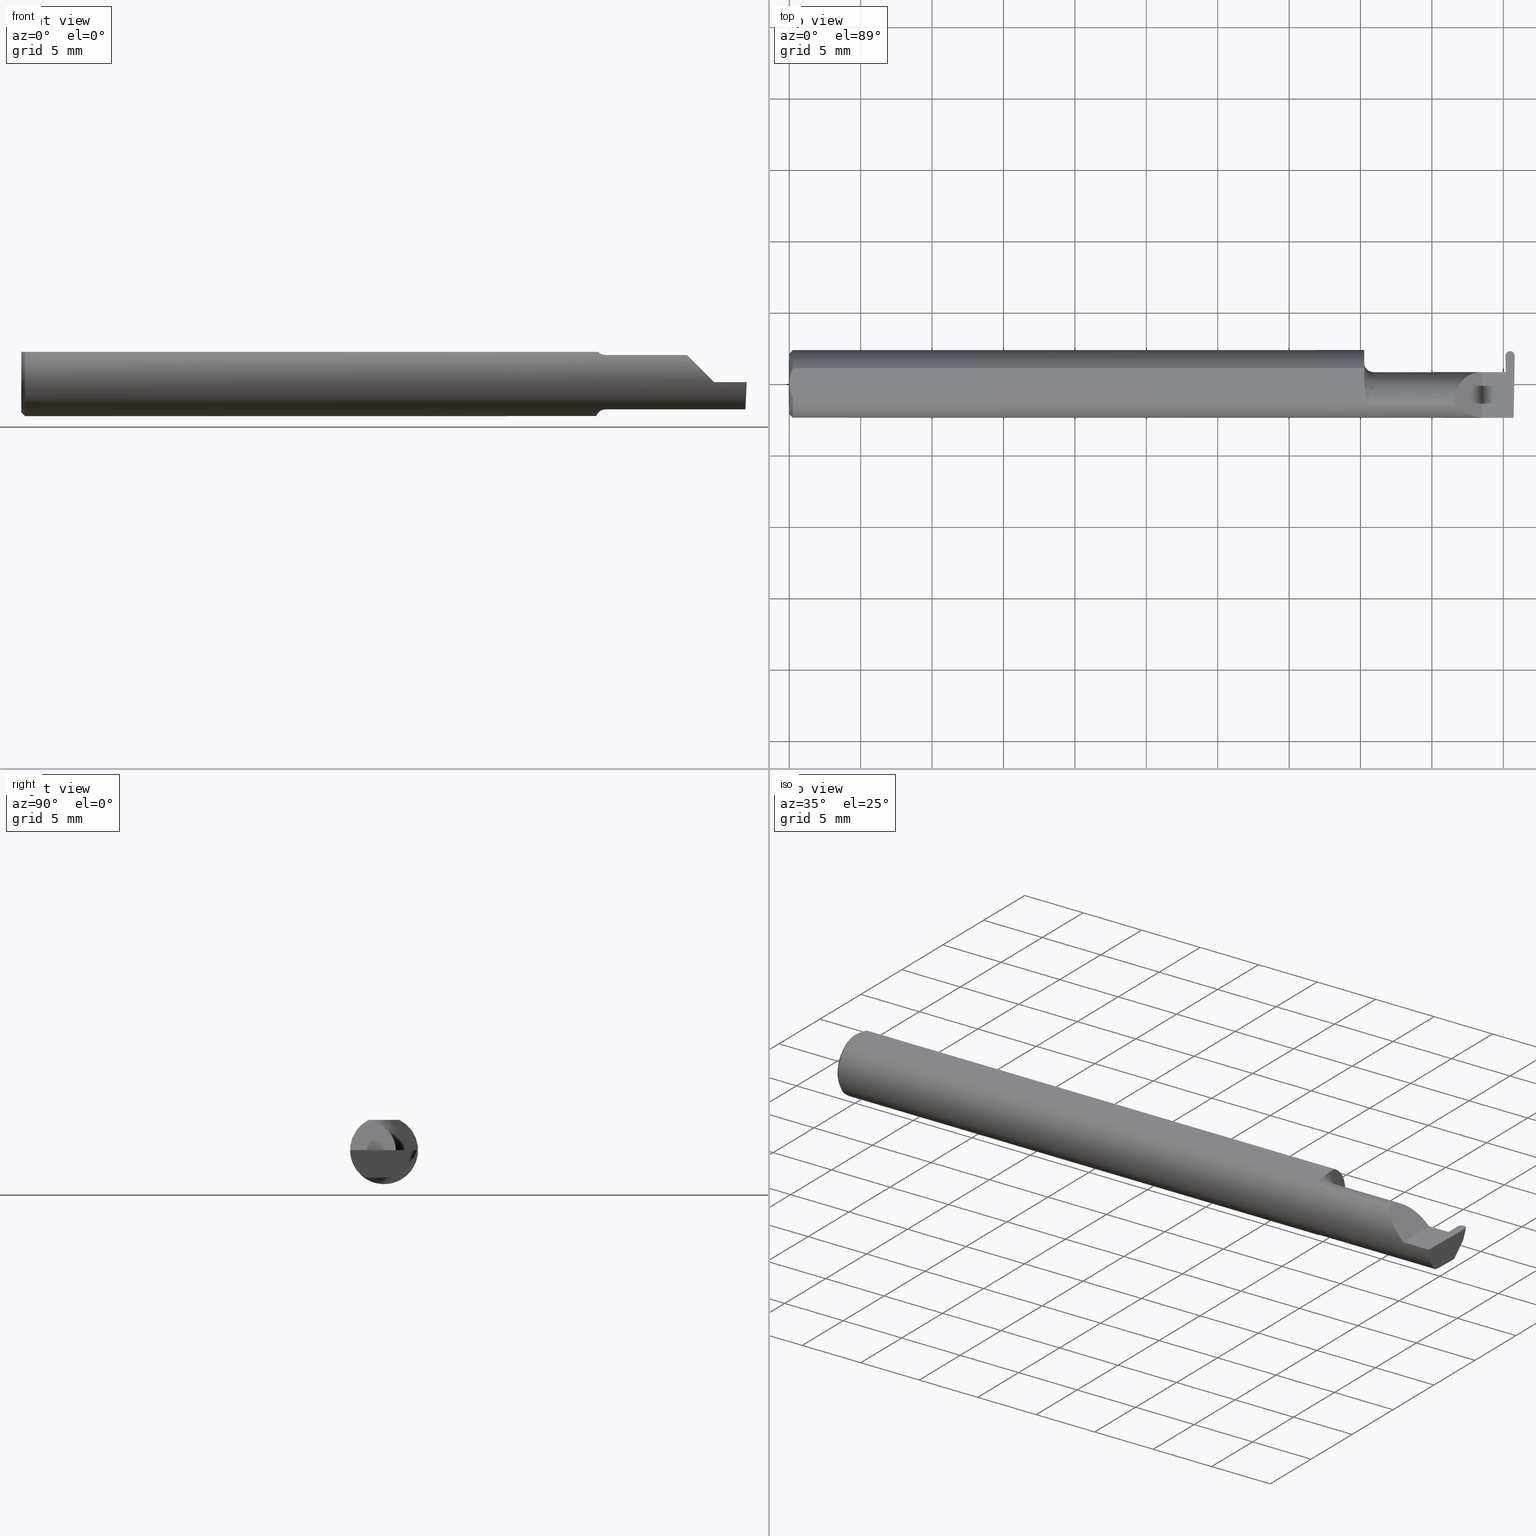
[diagram: canonical four-view strip — front | top / right | iso, engineering-drawing reading convention]
A machine part, canonical four-view strip (front | top / right | iso — engineering-drawing reading convention). The complete STEP part file that produces these views, byte-faithful:
ISO-10303-21;
HEADER;
FILE_DESCRIPTION (( 'STEP AP203' ),
    '1' );
FILE_NAME ('221819-GFR025K-6.STEP',
    '2024-06-17T19:12:09',
    ( '' ),
    ( '' ),
    'SwSTEP 2.0',
    'SolidWorks 2022',
    '' );
FILE_SCHEMA (( 'CONFIG_CONTROL_DESIGN' ));
ENDSEC;

DATA;
#1 = ORIENTED_EDGE ( 'NONE', *, *, #403, .T. ) ;
#2 = CARTESIAN_POINT ( 'NONE',  ( 1.979564206858069220, 0.09040000000000021629, 9.406295376684195230E-19 ) ) ;
#3 = AXIS2_PLACEMENT_3D ( 'NONE', #314, #685, #201 ) ;
#4 = AXIS2_PLACEMENT_3D ( 'NONE', #423, #791, #664 ) ;
#5 = CC_DESIGN_APPROVAL ( #53, ( #10 ) ) ;
#6 = DIRECTION ( 'NONE',  ( -1.000000000000000000, -0.000000000000000000, -0.000000000000000000 ) ) ;
#7 = ADVANCED_FACE ( 'NONE', ( #692 ), #497, .T. ) ;
#8 = DIRECTION ( 'NONE',  ( 0.000000000000000000, -0.3420201433256689350, -0.9396926207859082059 ) ) ;
#9 = FACE_OUTER_BOUND ( 'NONE', #390, .T. ) ;
#10 = PRODUCT_DEFINITION ( 'UNKNOWN', '', #559, #308 ) ;
#11 = DIRECTION ( 'NONE',  ( -1.000000000000000000, -0.000000000000000000, -0.000000000000000000 ) ) ;
#12 = VERTEX_POINT ( 'NONE', #560 ) ;
#13 = CARTESIAN_POINT ( 'NONE',  ( 1.984422275622966358, 0.05209129798028563907, -0.06797378766570144615 ) ) ;
#14 = LINE ( 'NONE', #442, #734 ) ;
#15 = EDGE_CURVE ( 'NONE', #108, #443, #516, .T. ) ;
#16 = TOROIDAL_SURFACE ( 'NONE', #626, 0.09999999999999999167, 0.02499999999999993894 ) ;
#17 = COORDINATED_UNIVERSAL_TIME_OFFSET ( 8, 0, .BEHIND. ) ;
#18 = CYLINDRICAL_SURFACE ( 'NONE', #616, 0.07500000000000003886 ) ;
#19 = ORIENTED_EDGE ( 'NONE', *, *, #743, .F. ) ;
#20 = PLANE ( 'NONE',  #639 ) ;
#21 = MANIFOLD_SOLID_BREP ( 'Radii', #418 ) ;
#22 = EDGE_CURVE ( 'NONE', #443, #633, #177, .T. ) ;
#23 = ORIENTED_EDGE ( 'NONE', *, *, #403, .F. ) ;
#24 = PERSON_AND_ORGANIZATION_ROLE ( 'creator' ) ;
#25 = DIRECTION ( 'NONE',  ( -0.03876062227022269990, -0.3417631236437465025, -0.9389864650134709390 ) ) ;
#26 = ORIENTED_EDGE ( 'NONE', *, *, #790, .T. ) ;
#27 = CARTESIAN_POINT ( 'NONE',  ( 1.591204482410374377, -0.04226411763296350488, 0.08351490979309540708 ) ) ;
#28 = ORIENTED_EDGE ( 'NONE', *, *, #376, .T. ) ;
#29 = PERSON_AND_ORGANIZATION ( #579, #458 ) ;
#30 = DIRECTION ( 'NONE',  ( 0.000000000000000000, 0.000000000000000000, 1.000000000000000000 ) ) ;
#31 = ORIENTED_EDGE ( 'NONE', *, *, #470, .F. ) ;
#32 = CARTESIAN_POINT ( 'NONE',  ( 1.854690286057536941, -0.08092595952420821026, 0.05530971394246249340 ) ) ;
#33 = VECTOR ( 'NONE', #232, 39.37007874015748143 ) ;
#34 = CARTESIAN_POINT ( 'NONE',  ( 1.834999999999999520, -0.04781600192481531841, 0.07500000000000003886 ) ) ;
#35 = EDGE_CURVE ( 'NONE', #245, #362, #374, .T. ) ;
#36 = EDGE_LOOP ( 'NONE', ( #709, #580, #752, #769, #732, #529 ) ) ;
#37 = CARTESIAN_POINT ( 'NONE',  ( 1.974539839182260614, 0.1197494621322279795, 0.01726489658328622667 ) ) ;
#38 = CARTESIAN_POINT ( 'NONE',  ( 1.834999999999999298, 0.001333982822017845335, 0.07500000000000003886 ) ) ;
#39 = EDGE_LOOP ( 'NONE', ( #640, #310, #800 ) ) ;
#40 = LINE ( 'NONE', #145, #351 ) ;
#41 = ORIENTED_EDGE ( 'NONE', *, *, #204, .T. ) ;
#42 = ADVANCED_FACE ( 'NONE', ( #9 ), #551, .F. ) ;
#43 = DIRECTION ( 'NONE',  ( 0.000000000000000000, 0.000000000000000000, 1.000000000000000000 ) ) ;
#44 = APPROVAL_DATE_TIME ( #105, #417 ) ;
#45 = VERTEX_POINT ( 'NONE', #190 ) ;
#46 = CARTESIAN_POINT ( 'NONE',  ( 1.584999999999999964, 0.09359999999999996101, 0.000000000000000000 ) ) ;
#47 = ADVANCED_FACE ( 'NONE', ( #555 ), #437, .F. ) ;
#48 = VECTOR ( 'NONE', #259, 39.37007874015748143 ) ;
#49 = LINE ( 'NONE', #183, #557 ) ;
#50 = VERTEX_POINT ( 'NONE', #623 ) ;
#51 = AXIS2_PLACEMENT_3D ( 'NONE', #427, #236, #677 ) ;
#52 = DIRECTION ( 'NONE',  ( 0.000000000000000000, 0.000000000000000000, -1.000000000000000000 ) ) ;
#53 = APPROVAL ( #98, 'UNSPECIFIED' ) ;
#54 = CARTESIAN_POINT ( 'NONE',  ( 1.975260873654413052, 0.03239999999999999825, 0.000000000000000000 ) ) ;
#55 = ORIENTED_EDGE ( 'NONE', *, *, #567, .F. ) ;
#56 =( BOUNDED_CURVE ( )  B_SPLINE_CURVE ( 3, ( #809, #489, #745, #375 ),
 .UNSPECIFIED., .F., .F. ) 
 B_SPLINE_CURVE_WITH_KNOTS ( ( 4, 4 ),
 ( 1.570796326794919207, 1.618931655734860753 ),
 .UNSPECIFIED. ) 
 CURVE ( )  GEOMETRIC_REPRESENTATION_ITEM ( )  RATIONAL_B_SPLINE_CURVE ( ( 1.000000000000000000, 0.9998069251625132381, 0.9998069251625132381, 1.000000000000000000 ) ) 
 REPRESENTATION_ITEM ( '' )  );
#57 = DIRECTION ( 'NONE',  ( -1.000000000000000000, -0.000000000000000000, -0.000000000000000000 ) ) ;
#58 = CARTESIAN_POINT ( 'NONE',  ( 1.584999999999999964, -0.01308640439514272696, -0.09289765197734378699 ) ) ;
#59 = ORIENTED_EDGE ( 'NONE', *, *, #368, .T. ) ;
#60 = CARTESIAN_POINT ( 'NONE',  ( 1.974486369625657378, 0.07677130609030106967, 0.000000000000000000 ) ) ;
#61 = DIRECTION ( 'NONE',  ( 0.000000000000000000, -0.7071067811865436870, -0.7071067811865513475 ) ) ;
#62 = ORIENTED_EDGE ( 'NONE', *, *, #15, .T. ) ;
#63 = AXIS2_PLACEMENT_3D ( 'NONE', #696, #779, #150 ) ;
#64 = EDGE_CURVE ( 'NONE', #50, #768, #312, .T. ) ;
#65 = AXIS2_PLACEMENT_3D ( 'NONE', #457, #586, #400 ) ;
#66 = LINE ( 'NONE', #372, #771 ) ;
#67 = MECHANICAL_CONTEXT ( 'NONE', #309, 'mechanical' ) ;
#68 = CARTESIAN_POINT ( 'NONE',  ( 1.975260873654413052, 0.03239999999999999825, 0.000000000000000000 ) ) ;
#69 = CARTESIAN_POINT ( 'NONE',  ( 1.910000000000000142, -0.2500000000000000555, 1.102182119232621301E-17 ) ) ;
#70 = CC_DESIGN_DATE_AND_TIME_ASSIGNMENT ( #634, #760, ( #10 ) ) ;
#71 = ORIENTED_EDGE ( 'NONE', *, *, #487, .F. ) ;
#72 = CARTESIAN_POINT ( 'NONE',  ( 1.975446786689251333, 0.03221730376948541558, -0.005231735530809524318 ) ) ;
#73 = EDGE_CURVE ( 'NONE', #788, #50, #798, .T. ) ;
#74 =( LENGTH_UNIT ( ) NAMED_UNIT ( * ) SI_UNIT ( $, .METRE. ) );
#75 = CARTESIAN_POINT ( 'NONE',  ( 1.969065783658063173, 0.03221730376948681029, -0.005231735530809442786 ) ) ;
#76 = CARTESIAN_POINT ( 'NONE',  ( 1.975260873654413052, 0.03239999999999999825, -4.732000043842587031E-21 ) ) ;
#77 = AXIS2_PLACEMENT_3D ( 'NONE', #493, #363, #189 ) ;
#78 = ADVANCED_FACE ( 'NONE', ( #682 ), #83, .F. ) ;
#79 = DIRECTION ( 'NONE',  ( 0.000000000000000000, 0.000000000000000000, 1.000000000000000000 ) ) ;
#80 = CARTESIAN_POINT ( 'NONE',  ( 1.593098441794898346, -0.04641417426599075274, 0.08139430652501543351 ) ) ;
#81 = CARTESIAN_POINT ( 'NONE',  ( 1.609999999999999654, -0.04260000000000003367, 0.000000000000000000 ) ) ;
#82 = B_SPLINE_CURVE_WITH_KNOTS ( 'NONE', 3,
 ( #109, #274, #385, #225, #166, #344 ),
 .UNSPECIFIED., .F., .F.,
 ( 4, 2, 4 ),
 ( 0.001744210492668864416, 0.002295110172257193264, 0.002846009851845522111 ),
 .UNSPECIFIED. ) ;
#83 = PLANE ( 'NONE',  #625 ) ;
#84 = CARTESIAN_POINT ( 'NONE',  ( 0.000000000000000000, 0.000000000000000000, 0.000000000000000000 ) ) ;
#85 = APPROVAL_ROLE ( '' ) ;
#86 = DIRECTION ( 'NONE',  ( -1.000000000000000000, -0.000000000000000000, -0.000000000000000000 ) ) ;
#87 = CARTESIAN_POINT ( 'NONE',  ( 1.996507080450274474, 0.02748456554894273055, -0.07500000000000002498 ) ) ;
#88 = EDGE_CURVE ( 'NONE', #756, #45, #494, .T. ) ;
#89 = AXIS2_PLACEMENT_3D ( 'NONE', #13, #747, #199 ) ;
#90 = ORIENTED_EDGE ( 'NONE', *, *, #701, .F. ) ;
#91 = AXIS2_PLACEMENT_3D ( 'NONE', #697, #323, #147 ) ;
#92 = PERSON_AND_ORGANIZATION ( #579, #458 ) ;
#93 = CARTESIAN_POINT ( 'NONE',  ( 1.586463898467976863, -0.005727447913487319735, 0.08359999999999991049 ) ) ;
#94 = VERTEX_POINT ( 'NONE', #138 ) ;
#95 = CARTESIAN_POINT ( 'NONE',  ( 1.998318014211375448, 0.06205680439066463272, -0.04042776115827773770 ) ) ;
#96 = B_SPLINE_CURVE_WITH_KNOTS ( 'NONE', 3,
 ( #378, #628, #523, #93, #157, #506 ),
 .UNSPECIFIED., .F., .F.,
 ( 4, 2, 4 ),
 ( 0.009672910729349542408, 0.01035804079918431486, 0.01104317086901908732 ),
 .UNSPECIFIED. ) ;
#97 = EDGE_LOOP ( 'NONE', ( #645, #336, #188, #218, #774, #522 ) ) ;
#98 = APPROVAL_STATUS ( 'not_yet_approved' ) ;
#99 = CARTESIAN_POINT ( 'NONE',  ( 1.995069675717878299, -0.05810704225352107677, -0.07337936794867833123 ) ) ;
#100 = VERTEX_POINT ( 'NONE', #252 ) ;
#101 = CARTESIAN_POINT ( 'NONE',  ( 1.609999999999999654, -0.04260000000000003367, 0.000000000000000000 ) ) ;
#102 = ORIENTED_EDGE ( 'NONE', *, *, #243, .T. ) ;
#103 = ADVANCED_FACE ( 'NONE', ( #492 ), #565, .T. ) ;
#104 = CARTESIAN_POINT ( 'NONE',  ( 1.995192704155888785, -0.04781600192481515188, -0.07500000000000003886 ) ) ;
#105 = DATE_AND_TIME ( #700, #708 ) ;
#106 = ORIENTED_EDGE ( 'NONE', *, *, #298, .F. ) ;
#107 = CARTESIAN_POINT ( 'NONE',  ( 1.584999999999999964, -0.04260000000000003367, 0.000000000000000000 ) ) ;
#108 = VERTEX_POINT ( 'NONE', #263 ) ;
#109 = CARTESIAN_POINT ( 'NONE',  ( 0.000000000000000000, 0.000000000000000000, 0.08359999999999991049 ) ) ;
#110 = PERSON_AND_ORGANIZATION ( #579, #458 ) ;
#111 = ORIENTED_EDGE ( 'NONE', *, *, #291, .F. ) ;
#112 = ORIENTED_EDGE ( 'NONE', *, *, #35, .F. ) ;
#113 = EDGE_CURVE ( 'NONE', #399, #756, #452, .T. ) ;
#114 = CARTESIAN_POINT ( 'NONE',  ( 1.910000000000000142, 0.03239999999999999131, 5.082284216461538453E-17 ) ) ;
#115 = CARTESIAN_POINT ( 'NONE',  ( 1.995069675717878299, -0.05810704225352107677, -0.07337936794867833123 ) ) ;
#116 = ORIENTED_EDGE ( 'NONE', *, *, #503, .F. ) ;
#117 = DIRECTION ( 'NONE',  ( 0.000000000000000000, 0.000000000000000000, -1.000000000000000000 ) ) ;
#118 = EDGE_CURVE ( 'NONE', #611, #540, #96, .T. ) ;
#119 = DIRECTION ( 'NONE',  ( 1.000000000000000000, 0.000000000000000000, 0.000000000000000000 ) ) ;
#120 = AXIS2_PLACEMENT_3D ( 'NONE', #46, #663, #52 ) ;
#121 = EDGE_LOOP ( 'NONE', ( #275, #31, #102, #792 ) ) ;
#122 = APPROVAL_PERSON_ORGANIZATION ( #92, #53, #505 ) ;
#123 = PLANE ( 'NONE',  #546 ) ;
#124 = LINE ( 'NONE', #410, #706 ) ;
#125 = ORIENTED_EDGE ( 'NONE', *, *, #782, .F. ) ;
#126 = CARTESIAN_POINT ( 'NONE',  ( 1.999998056073120534, 0.07741385304294044756, 0.000000000000000000 ) ) ;
#127 = EDGE_CURVE ( 'NONE', #756, #94, #306, .T. ) ;
#128 = CARTESIAN_POINT ( 'NONE',  ( 1.585436655799339345, -0.01945041057485642419, -0.09177104786119409663 ) ) ;
#129 = ORIENTED_EDGE ( 'NONE', *, *, #73, .F. ) ;
#130 = DIRECTION ( 'NONE',  ( -1.000000000000000000, -0.000000000000000000, -0.000000000000000000 ) ) ;
#131 = CARTESIAN_POINT ( 'NONE',  ( 1.987408188690569011, 0.09039999999999999425, 0.000000000000000000 ) ) ;
#132 = CARTESIAN_POINT ( 'NONE',  ( 0.01000000000000016674, 0.000000000000000000, 0.000000000000000000 ) ) ;
#133 = VECTOR ( 'NONE', #671, 39.37007874015747433 ) ;
#134 = CARTESIAN_POINT ( 'NONE',  ( 2.115884466375952400, -0.04259999999999980469, -0.07500000000000002498 ) ) ;
#135 = CARTESIAN_POINT ( 'NONE',  ( 0.000000000000000000, 0.000000000000000000, 0.000000000000000000 ) ) ;
#136 = CARTESIAN_POINT ( 'NONE',  ( 0.01000000000000016674, 0.000000000000000000, -0.09360000000000001652 ) ) ;
#137 = EDGE_CURVE ( 'NONE', #346, #670, #389, .T. ) ;
#138 = CARTESIAN_POINT ( 'NONE',  ( 1.609999999999999654, -0.04260000000000003367, 0.07500000000000005274 ) ) ;
#139 = CC_DESIGN_PERSON_AND_ORGANIZATION_ASSIGNMENT ( #765, #704, ( #559 ) ) ;
#140 = CARTESIAN_POINT ( 'NONE',  ( 1.605389214148234434, -0.05750155061631018888, 0.07386444488392715502 ) ) ;
#141 = CARTESIAN_POINT ( 'NONE',  ( 1.609999999999999654, -0.04260000000000003367, 0.000000000000000000 ) ) ;
#142 = DIRECTION ( 'NONE',  ( 1.000000000000000000, 0.000000000000000000, 0.000000000000000000 ) ) ;
#143 = FACE_OUTER_BOUND ( 'NONE', #39, .T. ) ;
#144 = ORIENTED_EDGE ( 'NONE', *, *, #214, .T. ) ;
#145 = CARTESIAN_POINT ( 'NONE',  ( 1.984079623811642268, 0.1167230751830942992, 0.07232205467615791805 ) ) ;
#146 = EDGE_CURVE ( 'NONE', #338, #94, #288, .T. ) ;
#147 = DIRECTION ( 'NONE',  ( 0.000000000000000000, 0.000000000000000000, -1.000000000000000000 ) ) ;
#148 = EDGE_LOOP ( 'NONE', ( #599, #205, #662, #456 ) ) ;
#149 = APPROVAL_STATUS ( 'not_yet_approved' ) ;
#150 = DIRECTION ( 'NONE',  ( 0.000000000000000000, 0.000000000000000000, -1.000000000000000000 ) ) ;
#151 = APPROVAL_ROLE ( '' ) ;
#152 = EDGE_LOOP ( 'NONE', ( #512, #796, #163, #173, #715 ) ) ;
#153 = CARTESIAN_POINT ( 'NONE',  ( 1.591129652885479473, -0.04209513035970116612, 0.08359999999999991049 ) ) ;
#154 = VECTOR ( 'NONE', #332, 39.37007874015748143 ) ;
#155 = CIRCLE ( 'NONE', #4, 0.02499999999999993894 ) ;
#156 = PERSON_AND_ORGANIZATION ( #579, #458 ) ;
#157 = CARTESIAN_POINT ( 'NONE',  ( 1.585000000000000187, 0.003280657920457245337, 0.08359999999999991049 ) ) ;
#158 = EDGE_LOOP ( 'NONE', ( #165, #125, #651 ) ) ;
#159 = CARTESIAN_POINT ( 'NONE',  ( 1.999986840374342822, 0.07677130609030106967, 0.000000000000000000 ) ) ;
#160 = EDGE_CURVE ( 'NONE', #226, #443, #784, .T. ) ;
#161 = ORIENTED_EDGE ( 'NONE', *, *, #470, .T. ) ;
#162 = DIRECTION ( 'NONE',  ( 7.095197676276959543E-16, -0.9993908270190957621, 0.03489949670250104552 ) ) ;
#163 = ORIENTED_EDGE ( 'NONE', *, *, #247, .F. ) ;
#164 = DIRECTION ( 'NONE',  ( -1.000000000000000000, -0.000000000000000000, -0.000000000000000000 ) ) ;
#165 = ORIENTED_EDGE ( 'NONE', *, *, #238, .T. ) ;
#166 = CARTESIAN_POINT ( 'NONE',  ( 0.007036739039485840133, 0.03550621559607060329, 0.08359999999999991049 ) ) ;
#167 = ORIENTED_EDGE ( 'NONE', *, *, #329, .T. ) ;
#168 = CARTESIAN_POINT ( 'NONE',  ( 1.880893035518782730, -0.09359999999999997489, 0.02910696448121682239 ) ) ;
#169 = CARTESIAN_POINT ( 'NONE',  ( 1.995283749808152374, -0.04259999999999980469, -0.07500000000000002498 ) ) ;
#170 = CIRCLE ( 'NONE', #77, 0.08359999999999989662 ) ;
#171 = ORIENTED_EDGE ( 'NONE', *, *, #320, .F. ) ;
#172 = CARTESIAN_POINT ( 'NONE',  ( 1.601446782524424073, -0.05558685324519220539, -0.07531605361338929161 ) ) ;
#173 = ORIENTED_EDGE ( 'NONE', *, *, #426, .T. ) ;
#174 = CARTESIAN_POINT ( 'NONE',  ( 1.969065783658063173, 0.03221730376948681029, -0.005231735530809442786 ) ) ;
#175 = ORIENTED_EDGE ( 'NONE', *, *, #186, .T. ) ;
#176 = CARTESIAN_POINT ( 'NONE',  ( 1.976921122959496957, 0.02931965133412150343, -0.04667009593691547747 ) ) ;
#177 = CIRCLE ( 'NONE', #801, 0.09360000000000001652 ) ;
#178 = CARTESIAN_POINT ( 'NONE',  ( 0.000000000000000000, 0.04209513035969864037, 0.08359999999999988274 ) ) ;
#179 = AXIS2_PLACEMENT_3D ( 'NONE', #227, #511, #654 ) ;
#180 = ORIENTED_EDGE ( 'NONE', *, *, #526, .F. ) ;
#181 = DIRECTION ( 'NONE',  ( 0.000000000000000000, 0.000000000000000000, 1.000000000000000000 ) ) ;
#182 = EDGE_CURVE ( 'NONE', #543, #346, #209, .T. ) ;
#183 = CARTESIAN_POINT ( 'NONE',  ( 2.999519565323742037E-32, -0.09359999999999998876, 2.449293598294716768E-16 ) ) ;
#184 = VERTEX_POINT ( 'NONE', #638 ) ;
#185 = CARTESIAN_POINT ( 'NONE',  ( 1.987065021309431190, 0.09039999999999999425, 0.000000000000000000 ) ) ;
#186 = EDGE_CURVE ( 'NONE', #45, #338, #660, .T. ) ;
#187 = CARTESIAN_POINT ( 'NONE',  ( 1.910000000000000142, 0.03239999999999999131, 5.082284216461538453E-17 ) ) ;
#188 = ORIENTED_EDGE ( 'NONE', *, *, #782, .T. ) ;
#189 = DIRECTION ( 'NONE',  ( 0.000000000000000000, 0.000000000000000000, -1.000000000000000000 ) ) ;
#190 = CARTESIAN_POINT ( 'NONE',  ( 1.836620632051321200, -0.05810704225352102820, 0.07337936794867834511 ) ) ;
#191 = ADVANCED_FACE ( 'NONE', ( #404 ), #577, .F. ) ;
#192 = AXIS2_PLACEMENT_3D ( 'NONE', #762, #644, #455 ) ;
#193 = AXIS2_PLACEMENT_3D ( 'NONE', #799, #239, #740 ) ;
#194 = LINE ( 'NONE', #739, #681 ) ;
#195 = CC_DESIGN_SECURITY_CLASSIFICATION ( #773, ( #559 ) ) ;
#196 = ORIENTED_EDGE ( 'NONE', *, *, #761, .T. ) ;
#197 = CARTESIAN_POINT ( 'NONE',  ( 1.997012998164632958, -0.09360000000000001652, 0.000000000000000000 ) ) ;
#198 = B_SPLINE_CURVE_WITH_KNOTS ( 'NONE', 3,
 ( #476, #673, #610, #128, #58, #234 ),
 .UNSPECIFIED., .F., .F.,
 ( 4, 2, 4 ),
 ( 0.0007041963409106256075, 0.001193146413573847875, 0.001682096486237070251 ),
 .UNSPECIFIED. ) ;
#199 = DIRECTION ( 'NONE',  ( 0.000000000000000000, 0.9396926207859082059, -0.3420201433256692125 ) ) ;
#200 = CARTESIAN_POINT ( 'NONE',  ( 1.995996405735428469, -0.09359999999999997489, -0.02910696448121681199 ) ) ;
#201 = DIRECTION ( 'NONE',  ( 0.03490480639812536257, 0.000000000000000000, 0.9993906415863165194 ) ) ;
#202 = CARTESIAN_POINT ( 'NONE',  ( 1.998950135716953236, 0.07412453217687618723, -0.02836003337206604441 ) ) ;
#203 = TOROIDAL_SURFACE ( 'NONE', #723, 0.09999999999999999167, 0.02499999999999993894 ) ;
#204 = EDGE_CURVE ( 'NONE', #763, #468, #584, .T. ) ;
#205 = ORIENTED_EDGE ( 'NONE', *, *, #272, .T. ) ;
#206 = CARTESIAN_POINT ( 'NONE',  ( 1.609999999999999654, -0.05810704225352104207, 0.07337936794867834511 ) ) ;
#207 = DIRECTION ( 'NONE',  ( 1.000000000000000000, -0.000000000000000000, -0.000000000000000000 ) ) ;
#208 = CC_DESIGN_PERSON_AND_ORGANIZATION_ASSIGNMENT ( #156, #278, ( #273 ) ) ;
#209 = LINE ( 'NONE', #588, #733 ) ;
#210 = VERTEX_POINT ( 'NONE', #766 ) ;
#211 = CARTESIAN_POINT ( 'NONE',  ( 1.987236605000000100, 0.08345985621932504317, -0.01902470932961709826 ) ) ;
#212 = PERSON_AND_ORGANIZATION ( #579, #458 ) ;
#213 = CARTESIAN_POINT ( 'NONE',  ( 1.584999999999999964, -0.04260000000000003367, 0.000000000000000000 ) ) ;
#214 = EDGE_CURVE ( 'NONE', #670, #12, #707, .T. ) ;
#215 = ORIENTED_EDGE ( 'NONE', *, *, #544, .F. ) ;
#216 = DIRECTION ( 'NONE',  ( 0.000000000000000000, 0.000000000000000000, 1.000000000000000000 ) ) ;
#217 = AXIS2_PLACEMENT_3D ( 'NONE', #530, #229, #117 ) ;
#218 = ORIENTED_EDGE ( 'NONE', *, *, #807, .T. ) ;
#219 = APPROVAL_PERSON_ORGANIZATION ( #324, #754, #85 ) ;
#220 = CARTESIAN_POINT ( 'NONE',  ( 1.834999999999999520, -0.04260000000000003367, 0.07500000000000003886 ) ) ;
#221 = COORDINATED_UNIVERSAL_TIME_OFFSET ( 8, 0, .BEHIND. ) ;
#222 = ORIENTED_EDGE ( 'NONE', *, *, #487, .T. ) ;
#223 = CARTESIAN_POINT ( 'NONE',  ( 1.996701111497402481, 0.03118878038446752654, -0.07129578516447518388 ) ) ;
#224 = ORIENTED_EDGE ( 'NONE', *, *, #329, .F. ) ;
#225 = CARTESIAN_POINT ( 'NONE',  ( 0.004492168231814808177, 0.02859366993844194779, 0.08359999999999991049 ) ) ;
#226 = VERTEX_POINT ( 'NONE', #699 ) ;
#227 = CARTESIAN_POINT ( 'NONE',  ( 1.584999999999999964, -0.04260000000000003367, 0.000000000000000000 ) ) ;
#228 = ORIENTED_EDGE ( 'NONE', *, *, #451, .T. ) ;
#229 = DIRECTION ( 'NONE',  ( 1.000000000000000000, 0.000000000000000000, 0.000000000000000000 ) ) ;
#230 = ADVANCED_FACE ( 'NONE', ( #714 ), #325, .F. ) ;
#231 = CONICAL_SURFACE ( 'NONE', #265, 0.08359999999999989662, 0.7853981633974458365 ) ;
#232 = DIRECTION ( 'NONE',  ( 0.000000000000000000, 1.000000000000000000, 0.000000000000000000 ) ) ;
#233 = EDGE_LOOP ( 'NONE', ( #161, #167 ) ) ;
#234 = CARTESIAN_POINT ( 'NONE',  ( 1.584999999999999964, -0.006757276995305234492, -0.09335576686851605743 ) ) ;
#235 = EDGE_LOOP ( 'NONE', ( #666, #614, #116, #597, #481 ) ) ;
#236 = DIRECTION ( 'NONE',  ( -1.000000000000000000, -0.000000000000000000, -0.000000000000000000 ) ) ;
#237 = EDGE_LOOP ( 'NONE', ( #55, #548, #510, #384, #215, #71, #591, #424, #1 ) ) ;
#238 = EDGE_CURVE ( 'NONE', #184, #293, #755, .T. ) ;
#239 = DIRECTION ( 'NONE',  ( 0.9993699743034455407, 0.001238639365660606107, 0.03546999060124694098 ) ) ;
#240 = AXIS2_PLACEMENT_3D ( 'NONE', #627, #79, #373 ) ;
#241 = EDGE_LOOP ( 'NONE', ( #532, #356, #405, #777, #780, #564, #297, #19, #62, #350, #326, #300, #262, #467 ) ) ;
#242 = DIRECTION ( 'NONE',  ( 0.000000000000000000, 0.000000000000000000, 1.000000000000000000 ) ) ;
#243 = EDGE_CURVE ( 'NONE', #280, #633, #82, .T. ) ;
#244 = FACE_OUTER_BOUND ( 'NONE', #333, .T. ) ;
#245 = VERTEX_POINT ( 'NONE', #269 ) ;
#246 = CARTESIAN_POINT ( 'NONE',  ( 1.978015756548945348, -0.04260000000000003367, -0.07500000000000002498 ) ) ;
#247 = EDGE_CURVE ( 'NONE', #805, #346, #552, .T. ) ;
#248 = DIRECTION ( 'NONE',  ( 0.000000000000000000, 0.000000000000000000, -1.000000000000000000 ) ) ;
#249 = CARTESIAN_POINT ( 'NONE',  ( 1.987065021309431190, 0.09039999999999999425, 0.000000000000000000 ) ) ;
#250 = CC_DESIGN_PERSON_AND_ORGANIZATION_ASSIGNMENT ( #29, #24, ( #559 ) ) ;
#251 = AXIS2_PLACEMENT_3D ( 'NONE', #284, #162, #398 ) ;
#252 = CARTESIAN_POINT ( 'NONE',  ( 1.591356684838558744, -0.04260000000000006143, -0.08334386600104411180 ) ) ;
#253 = AXIS2_PLACEMENT_3D ( 'NONE', #414, #606, #61 ) ;
#254 = APPROVAL_PERSON_ORGANIZATION ( #110, #417, #151 ) ;
#255 = CARTESIAN_POINT ( 'NONE',  ( 1.609999999999999654, -0.05810704225352104207, -0.07337936794867834511 ) ) ;
#256 = DIRECTION ( 'NONE',  ( -0.7071067811865442421, 0.000000000000000000, -0.7071067811865509034 ) ) ;
#257 = FACE_OUTER_BOUND ( 'NONE', #448, .T. ) ;
#258 = B_SPLINE_CURVE_WITH_KNOTS ( 'NONE', 3,
 ( #153, #27, #686, #758 ),
 .UNSPECIFIED., .F., .F.,
 ( 4, 4 ),
 ( 4.741820243497489152E-07, 1.584523690453282392E-05 ),
 .UNSPECIFIED. ) ;
#259 = DIRECTION ( 'NONE',  ( 1.000000000000000000, 7.099522513569547654E-16, -0.000000000000000000 ) ) ;
#260 = CARTESIAN_POINT ( 'NONE',  ( -3.937007874019685528E-05, 0.09039999999999999425, 0.000000000000000000 ) ) ;
#261 = EDGE_CURVE ( 'NONE', #468, #411, #40, .T. ) ;
#262 = ORIENTED_EDGE ( 'NONE', *, *, #761, .F. ) ;
#263 = CARTESIAN_POINT ( 'NONE',  ( 0.01000000000000016674, -0.04209513035969864037, 0.08359999999999988274 ) ) ;
#264 = DIRECTION ( 'NONE',  ( -1.000000000000000000, -0.000000000000000000, -0.000000000000000000 ) ) ;
#265 = AXIS2_PLACEMENT_3D ( 'NONE', #84, #327, #566 ) ;
#266 = ADVANCED_FACE ( 'NONE', ( #572 ), #18, .T. ) ;
#267 = EDGE_LOOP ( 'NONE', ( #475, #111, #222, #277 ) ) ;
#268 = CALENDAR_DATE ( 2024, 17, 6 ) ;
#269 = CARTESIAN_POINT ( 'NONE',  ( 1.977841490183931406, 0.02986403519928995318, -0.07262053034965132436 ) ) ;
#270 = VERTEX_POINT ( 'NONE', #159 ) ;
#271 = DATE_AND_TIME ( #770, #353 ) ;
#272 = EDGE_CURVE ( 'NONE', #362, #788, #775, .T. ) ;
#273 = PRODUCT ( '221819-GFR025K-6', '221819-GFR025K-6', '', ( #67 ) ) ;
#274 = CARTESIAN_POINT ( 'NONE',  ( 2.476070721796526867E-17, 0.007317304829308955878, 0.08359999999999991049 ) ) ;
#275 = ORIENTED_EDGE ( 'NONE', *, *, #160, .F. ) ;
#276 = CARTESIAN_POINT ( 'NONE',  ( 1.975523074283046965, 0.07412453217687620111, -0.02836003337206605482 ) ) ;
#277 = ORIENTED_EDGE ( 'NONE', *, *, #368, .F. ) ;
#278 = PERSON_AND_ORGANIZATION_ROLE ( 'design_owner' ) ;
#279 = DIRECTION ( 'NONE',  ( -1.000000000000000000, -0.000000000000000000, -0.000000000000000000 ) ) ;
#280 = VERTEX_POINT ( 'NONE', #286 ) ;
#281 = CARTESIAN_POINT ( 'NONE',  ( 1.910000000000000142, -0.09360000000000005815, 1.102182119232621301E-17 ) ) ;
#282 = VECTOR ( 'NONE', #621, 39.37007874015748143 ) ;
#283 = CIRCLE ( 'NONE', #469, 0.09999999999999999167 ) ;
#284 = CARTESIAN_POINT ( 'NONE',  ( 1.975260873654413052, 0.03239999999999999825, 0.000000000000000000 ) ) ;
#285 = ORIENTED_EDGE ( 'NONE', *, *, #620, .T. ) ;
#286 = CARTESIAN_POINT ( 'NONE',  ( 0.000000000000000000, 0.000000000000000000, 0.08359999999999991049 ) ) ;
#287 = ORIENTED_EDGE ( 'NONE', *, *, #554, .T. ) ;
#288 = LINE ( 'NONE', #772, #154 ) ;
#289 = ORIENTED_EDGE ( 'NONE', *, *, #204, .F. ) ;
#290 = FACE_OUTER_BOUND ( 'NONE', #422, .T. ) ;
#291 = EDGE_CURVE ( 'NONE', #569, #45, #334, .T. ) ;
#292 = CARTESIAN_POINT ( 'NONE',  ( 0.000000000000000000, -0.04209513035969864037, 0.08359999999999988274 ) ) ;
#293 = VERTEX_POINT ( 'NONE', #406 ) ;
#294 = FACE_OUTER_BOUND ( 'NONE', #158, .T. ) ;
#295 = VECTOR ( 'NONE', #781, 39.37007874015748143 ) ;
#296 = CARTESIAN_POINT ( 'NONE',  ( 1.609999999999999654, -0.05810704225352104207, -0.07337936794867834511 ) ) ;
#297 = ORIENTED_EDGE ( 'NONE', *, *, #631, .F. ) ;
#298 = EDGE_CURVE ( 'NONE', #12, #245, #592, .T. ) ;
#299 = CARTESIAN_POINT ( 'NONE',  ( 1.595264545693808822, -0.04993027844100252771, -0.07924826417278524326 ) ) ;
#300 = ORIENTED_EDGE ( 'NONE', *, *, #238, .F. ) ;
#301 = LINE ( 'NONE', #432, #419 ) ;
#302 =( BOUNDED_CURVE ( )  B_SPLINE_CURVE ( 3, ( #753, #750, #200, #197 ),
 .UNSPECIFIED., .F., .F. ) 
 B_SPLINE_CURVE_WITH_KNOTS ( ( 4, 4 ),
 ( 0.2063001339125776490, 1.107331509589607910 ),
 .UNSPECIFIED. ) 
 CURVE ( )  GEOMETRIC_REPRESENTATION_ITEM ( )  RATIONAL_B_SPLINE_CURVE ( ( 1.000000000000000000, 0.9334817841311873199, 0.9334817841311873199, 1.000000000000000000 ) ) 
 REPRESENTATION_ITEM ( '' )  );
#303 = DIRECTION ( 'NONE',  ( -0.03876062227022298440, 0.3417631236437465025, 0.9389864650134710500 ) ) ;
#304 = ORIENTED_EDGE ( 'NONE', *, *, #495, .F. ) ;
#305 = LINE ( 'NONE', #126, #133 ) ;
#306 = CIRCLE ( 'NONE', #705, 0.07500000000000005274 ) ;
#307 = CARTESIAN_POINT ( 'NONE',  ( 1.591356684838558744, -0.04260000000000006143, -0.08334386600104411180 ) ) ;
#308 = DESIGN_CONTEXT ( 'detailed design', #598, 'design' ) ;
#309 = APPLICATION_CONTEXT ( 'configuration controlled 3d designs of mechanical parts and assemblies' ) ;
#310 = ORIENTED_EDGE ( 'NONE', *, *, #113, .T. ) ;
#311 = FACE_OUTER_BOUND ( 'NONE', #395, .T. ) ;
#312 = LINE ( 'NONE', #68, #48 ) ;
#313 = ADVANCED_FACE ( 'NONE', ( #525 ), #710, .T. ) ;
#314 = CARTESIAN_POINT ( 'NONE',  ( 1.999998056073120534, 0.07741385304294044756, 0.000000000000000000 ) ) ;
#315 = PLANE ( 'NONE',  #520 ) ;
#316 = CARTESIAN_POINT ( 'NONE',  ( 1.969248479888576320, 0.03239999999999999825, 0.000000000000000000 ) ) ;
#317 = CC_DESIGN_APPROVAL ( #754, ( #559 ) ) ;
#318 = CARTESIAN_POINT ( 'NONE',  ( 1.910000000000000142, -0.09360000000000005815, 1.102182119232621301E-17 ) ) ;
#319 = CARTESIAN_POINT ( 'NONE',  ( 1.591356684838558744, -0.04260000000000006143, 0.08334386600104411180 ) ) ;
#320 = EDGE_CURVE ( 'NONE', #210, #543, #716, .T. ) ;
#321 = DIRECTION ( 'NONE',  ( -0.7071067811865507924, 0.000000000000000000, 0.7071067811865441310 ) ) ;
#322 = EDGE_CURVE ( 'NONE', #402, #453, #407, .T. ) ;
#323 = DIRECTION ( 'NONE',  ( 1.000000000000000000, 0.000000000000000000, 0.000000000000000000 ) ) ;
#324 = PERSON_AND_ORGANIZATION ( #579, #458 ) ;
#325 = PLANE ( 'NONE',  #251 ) ;
#326 = ORIENTED_EDGE ( 'NONE', *, *, #807, .F. ) ;
#327 = DIRECTION ( 'NONE',  ( 1.000000000000000000, 0.000000000000000000, 0.000000000000000000 ) ) ;
#328 = VECTOR ( 'NONE', #207, 39.37007874015748143 ) ;
#329 = EDGE_CURVE ( 'NONE', #226, #280, #441, .T. ) ;
#330 = ORIENTED_EDGE ( 'NONE', *, *, #495, .T. ) ;
#331 = PERSON_AND_ORGANIZATION_ROLE ( 'creator' ) ;
#332 = DIRECTION ( 'NONE',  ( -1.000000000000000000, -0.000000000000000000, -0.000000000000000000 ) ) ;
#333 = EDGE_LOOP ( 'NONE', ( #228, #112, #106, #340 ) ) ;
#334 =( BOUNDED_CURVE ( )  B_SPLINE_CURVE ( 3, ( #281, #168, #32, #396 ),
 .UNSPECIFIED., .F., .F. ) 
 B_SPLINE_CURVE_WITH_KNOTS ( ( 4, 4 ),
 ( 4.712388980384689674, 5.613420356061720184 ),
 .UNSPECIFIED. ) 
 CURVE ( )  GEOMETRIC_REPRESENTATION_ITEM ( )  RATIONAL_B_SPLINE_CURVE ( ( 1.000000000000000000, 0.9334817841311873199, 0.9334817841311873199, 1.000000000000000000 ) ) 
 REPRESENTATION_ITEM ( '' )  );
#335 = FACE_OUTER_BOUND ( 'NONE', #233, .T. ) ;
#336 = ORIENTED_EDGE ( 'NONE', *, *, #118, .T. ) ;
#337 = DIRECTION ( 'NONE',  ( 0.000000000000000000, 0.000000000000000000, 1.000000000000000000 ) ) ;
#338 = VERTEX_POINT ( 'NONE', #519 ) ;
#339 = CARTESIAN_POINT ( 'NONE',  ( 0.000000000000000000, 0.000000000000000000, -0.08359999999999989662 ) ) ;
#340 = ORIENTED_EDGE ( 'NONE', *, *, #214, .F. ) ;
#341 = DIRECTION ( 'NONE',  ( -1.000000000000000000, -0.000000000000000000, -0.000000000000000000 ) ) ;
#342 = VECTOR ( 'NONE', #793, 39.37007874015748143 ) ;
#343 = ORIENTED_EDGE ( 'NONE', *, *, #272, .F. ) ;
#344 = CARTESIAN_POINT ( 'NONE',  ( 0.01000000000000016674, 0.04209513035969864037, 0.08359999999999988274 ) ) ;
#345 = EDGE_CURVE ( 'NONE', #540, #184, #283, .T. ) ;
#346 = VERTEX_POINT ( 'NONE', #169 ) ;
#347 = ORIENTED_EDGE ( 'NONE', *, *, #631, .T. ) ;
#348 = CARTESIAN_POINT ( 'NONE',  ( 1.609999999999999654, -0.04260000000000002673, -0.09999999999999999167 ) ) ;
#349 = LINE ( 'NONE', #178, #593 ) ;
#350 = ORIENTED_EDGE ( 'NONE', *, *, #22, .T. ) ;
#351 = VECTOR ( 'NONE', #635, 39.37007874015748854 ) ;
#352 = ADVANCED_FACE ( 'NONE', ( #290 ), #746, .T. ) ;
#353 = LOCAL_TIME ( 12, 12, 9.000000000000000000, #576 ) ;
#354 = B_SPLINE_CURVE_WITH_KNOTS ( 'NONE', 3,
 ( #486, #416, #797, #735 ),
 .UNSPECIFIED., .F., .F.,
 ( 4, 4 ),
 ( 0.0006429768761302093617, 0.001744210492668864416 ),
 .UNSPECIFIED. ) ;
#355 = DIRECTION ( 'NONE',  ( -1.000000000000000000, -0.000000000000000000, -0.000000000000000000 ) ) ;
#356 = ORIENTED_EDGE ( 'NONE', *, *, #600, .T. ) ;
#357 = DIRECTION ( 'NONE',  ( 1.000000000000000000, 0.000000000000000000, -0.000000000000000000 ) ) ;
#358 = CARTESIAN_POINT ( 'NONE',  ( 1.987236605000000100, 0.08345985621932504317, -0.01902470932961709826 ) ) ;
#359 = EDGE_LOOP ( 'NONE', ( #674, #462, #658, #465, #59, #713, #129, #343 ) ) ;
#360 = FACE_OUTER_BOUND ( 'NONE', #359, .T. ) ;
#361 = CARTESIAN_POINT ( 'NONE',  ( 1.593086474849918499, -0.04638796853538170589, -0.08140770120152261702 ) ) ;
#362 = VERTEX_POINT ( 'NONE', #401 ) ;
#363 = DIRECTION ( 'NONE',  ( -1.000000000000000000, -0.000000000000000000, -0.000000000000000000 ) ) ;
#364 = AXIS2_PLACEMENT_3D ( 'NONE', #744, #749, #367 ) ;
#365 = DIRECTION ( 'NONE',  ( 0.000000000000000000, -0.9396926207859084279, 0.3420201433256686019 ) ) ;
#366 = VECTOR ( 'NONE', #646, 39.37007874015748143 ) ;
#367 = DIRECTION ( 'NONE',  ( -1.000000000000000000, 0.000000000000000000, 1.224646799147358877E-16 ) ) ;
#368 = EDGE_CURVE ( 'NONE', #338, #726, #636, .T. ) ;
#369 = CARTESIAN_POINT ( 'NONE',  ( 1.999986840374342822, 0.07677130609030106967, 0.000000000000000000 ) ) ;
#370 =( NAMED_UNIT ( * ) SI_UNIT ( $, .STERADIAN. ) SOLID_ANGLE_UNIT ( ) );
#371 = CARTESIAN_POINT ( 'NONE',  ( 1.792236604999999816, -0.05810704225352107677, 0.07337936794867833123 ) ) ;
#372 = CARTESIAN_POINT ( 'NONE',  ( 1.792236604999999816, -0.05810704225352107677, -0.07337936794867833123 ) ) ;
#373 = DIRECTION ( 'NONE',  ( 1.000000000000000000, 0.000000000000000000, 0.000000000000000000 ) ) ;
#374 = LINE ( 'NONE', #808, #439 ) ;
#375 = CARTESIAN_POINT ( 'NONE',  ( 1.987236605000000100, 0.08345985621932504317, -0.01902470932961709826 ) ) ;
#376 = EDGE_CURVE ( 'NONE', #100, #402, #430, .T. ) ;
#377 = VECTOR ( 'NONE', #466, 39.37007874015748854 ) ;
#378 = CARTESIAN_POINT ( 'NONE',  ( 1.591129652885479473, -0.04209513035970116612, 0.08359999999999991049 ) ) ;
#379 = VECTOR ( 'NONE', #617, 39.37007874015748143 ) ;
#380 = DIRECTION ( 'NONE',  ( 0.000000000000000000, 0.000000000000000000, 1.000000000000000000 ) ) ;
#381 = ADVANCED_FACE ( 'NONE', ( #294 ), #521, .T. ) ;
#382 = DIRECTION ( 'NONE',  ( 0.000000000000000000, 0.000000000000000000, -1.000000000000000000 ) ) ;
#383 = DIRECTION ( 'NONE',  ( 1.000000000000000000, 0.000000000000000000, 0.000000000000000000 ) ) ;
#384 = ORIENTED_EDGE ( 'NONE', *, *, #64, .F. ) ;
#385 = CARTESIAN_POINT ( 'NONE',  ( 0.0009807498324118613890, 0.01453516766257752398, 0.08359999999999992437 ) ) ;
#386 = EDGE_CURVE ( 'NONE', #670, #402, #538, .T. ) ;
#387 = CARTESIAN_POINT ( 'NONE',  ( 1.976155195788624752, 0.06205680439066463966, -0.04042776115827773076 ) ) ;
#388 = APPROVAL_DATE_TIME ( #449, #754 ) ;
#389 = LINE ( 'NONE', #718, #490 ) ;
#390 = EDGE_LOOP ( 'NONE', ( #171, #330, #694, #477, #397, #524 ) ) ;
#391 = CARTESIAN_POINT ( 'NONE',  ( 1.987236605000000100, 0.08345985621932504317, -0.01902470932961709826 ) ) ;
#392 = ORIENTED_EDGE ( 'NONE', *, *, #137, .T. ) ;
#393 = PERSON_AND_ORGANIZATION ( #579, #458 ) ;
#394 = CARTESIAN_POINT ( 'NONE',  ( 1.835542168554753717, -0.05300374992736060081, 0.07445783144524575903 ) ) ;
#395 = EDGE_LOOP ( 'NONE', ( #392, #144, #717, #649 ) ) ;
#396 = CARTESIAN_POINT ( 'NONE',  ( 1.836620632051321200, -0.05810704225352102820, 0.07337936794867834511 ) ) ;
#397 = ORIENTED_EDGE ( 'NONE', *, *, #247, .T. ) ;
#398 = DIRECTION ( 'NONE',  ( 0.000000000000000000, -0.03489949670250104552, -0.9993908270190957621 ) ) ;
#399 = VERTEX_POINT ( 'NONE', #776 ) ;
#400 = DIRECTION ( 'NONE',  ( 0.000000000000000000, 0.000000000000000000, -1.000000000000000000 ) ) ;
#401 = CARTESIAN_POINT ( 'NONE',  ( 1.975446786689251333, 0.03221730376948541558, -0.005231735530809524318 ) ) ;
#402 = VERTEX_POINT ( 'NONE', #675 ) ;
#403 = EDGE_CURVE ( 'NONE', #270, #763, #725, .T. ) ;
#404 = FACE_OUTER_BOUND ( 'NONE', #460, .T. ) ;
#405 = ORIENTED_EDGE ( 'NONE', *, *, #689, .T. ) ;
#406 = CARTESIAN_POINT ( 'NONE',  ( 1.584999999999999964, 0.04209513035969864037, 0.08359999999999988274 ) ) ;
#407 = CIRCLE ( 'NONE', #802, 0.07500000000000005274 ) ;
#408 = VERTEX_POINT ( 'NONE', #60 ) ;
#409 = CARTESIAN_POINT ( 'NONE',  ( 1.834999999999999520, -0.04260000000000003367, 0.07500000000000003886 ) ) ;
#410 = CARTESIAN_POINT ( 'NONE',  ( -3.937007874019685528E-05, 0.02748456554894273055, -0.07500000000000002498 ) ) ;
#411 = VERTEX_POINT ( 'NONE', #249 ) ;
#412 = ADVANCED_FACE ( 'NONE', ( #360 ), #478, .T. ) ;
#413 =( BOUNDED_CURVE ( )  B_SPLINE_CURVE ( 3, ( #185, #2, #429, #680 ),
 .UNSPECIFIED., .F., .F. ) 
 B_SPLINE_CURVE_WITH_KNOTS ( ( 4, 4 ),
 ( 6.177091236413978947, 7.752341154236730425 ),
 .UNSPECIFIED. ) 
 CURVE ( )  GEOMETRIC_REPRESENTATION_ITEM ( )  RATIONAL_B_SPLINE_CURVE ( ( 1.000000000000000000, 0.8036869647627007396, 0.8036869647627007396, 1.000000000000000000 ) ) 
 REPRESENTATION_ITEM ( '' )  );
#414 = CARTESIAN_POINT ( 'NONE',  ( -3.937007874019685528E-05, 0.08348456554894213844, -0.01899999999999999953 ) ) ;
#415 = EDGE_LOOP ( 'NONE', ( #759, #28, #653 ) ) ;
#416 = CARTESIAN_POINT ( 'NONE',  ( 0.004072204388638868758, -0.02891446873729324601, 0.08359999999999991049 ) ) ;
#417 = APPROVAL ( #656, 'UNSPECIFIED' ) ;
#418 = CLOSED_SHELL ( 'NONE', ( #730, #535, #412, #313, #352, #230, #7, #78, #47, #483, #589, #583, #266, #609, #381, #517, #558, #679, #191, #42, #721, #103, #669 ) ) ;
#419 = VECTOR ( 'NONE', #684, 39.37007874015748854 ) ;
#420 = LOCAL_TIME ( 12, 12, 9.000000000000000000, #515 ) ;
#421 = LINE ( 'NONE', #292, #605 ) ;
#422 = EDGE_LOOP ( 'NONE', ( #224, #722, #485, #783 ) ) ;
#423 = CARTESIAN_POINT ( 'NONE',  ( 1.609999999999999654, -0.04260000000000003367, 0.09999999999999999167 ) ) ;
#424 = ORIENTED_EDGE ( 'NONE', *, *, #474, .F. ) ;
#425 = CARTESIAN_POINT ( 'NONE',  ( 2.000126064110226753, 0.08474742857719365363, -1.579535239246384574E-18 ) ) ;
#426 = EDGE_CURVE ( 'NONE', #805, #453, #66, .T. ) ;
#427 = CARTESIAN_POINT ( 'NONE',  ( 1.609999999999999654, -0.04260000000000003367, 0.000000000000000000 ) ) ;
#428 = ORIENTED_EDGE ( 'NONE', *, *, #146, .T. ) ;
#429 = CARTESIAN_POINT ( 'NONE',  ( 1.974347145889773225, 0.08474742857719380629, 1.579535239246386693E-18 ) ) ;
#430 = CIRCLE ( 'NONE', #479, 0.02499999999999993894 ) ;
#431 = CARTESIAN_POINT ( 'NONE',  ( 1.969187581145071864, 0.03233910125649559764, -0.001743911843603144704 ) ) ;
#432 = CARTESIAN_POINT ( 'NONE',  ( 1.974477840987134192, 0.07684650545427940127, 0.0002066085544878476163 ) ) ;
#433 = LENGTH_MEASURE_WITH_UNIT ( LENGTH_MEASURE( 0.02539999999999999897 ), #74 );
#434 = CARTESIAN_POINT ( 'NONE',  ( 1.599746577633803346, -0.05429945193459796010, 0.07626038032150810053 ) ) ;
#435 = DIRECTION ( 'NONE',  ( 0.000000000000000000, 0.000000000000000000, 1.000000000000000000 ) ) ;
#436 = EDGE_CURVE ( 'NONE', #408, #527, #301, .T. ) ;
#437 = PLANE ( 'NONE',  #364 ) ;
#438 = DIRECTION ( 'NONE',  ( -1.000000000000000000, -0.000000000000000000, -0.000000000000000000 ) ) ;
#439 = VECTOR ( 'NONE', #630, 39.37007874015748143 ) ;
#440 = CARTESIAN_POINT ( 'NONE',  ( 1.969126682401567408, 0.03227820251299121090, -0.003487823687206289408 ) ) ;
#441 = CIRCLE ( 'NONE', #65, 0.08359999999999989662 ) ;
#442 = CARTESIAN_POINT ( 'NONE',  ( 1.584999999999999964, 0.03239999999999999131, 5.082284216461538453E-17 ) ) ;
#443 = VERTEX_POINT ( 'NONE', #136 ) ;
#444 = APPLICATION_PROTOCOL_DEFINITION ( 'international standard', 'config_control_design', 1994, #309 ) ;
#445 = CARTESIAN_POINT ( 'NONE',  ( 1.836620632051321200, -0.05810704225352102820, 0.07337936794867834511 ) ) ;
#446 = CARTESIAN_POINT ( 'NONE',  ( 0.01000000000000016674, 0.04209513035969864037, 0.08359999999999988274 ) ) ;
#447 = PRODUCT_DEFINITION_SHAPE ( 'NONE', 'NONE',  #10 ) ;
#448 = EDGE_LOOP ( 'NONE', ( #574, #196, #507, #785, #347, #607, #285 ) ) ;
#449 = DATE_AND_TIME ( #268, #668 ) ;
#450 = CARTESIAN_POINT ( 'NONE',  ( 1.984422275622966580, 0.06407237889530596753, -0.07233454449310373902 ) ) ;
#451 = EDGE_CURVE ( 'NONE', #670, #362, #778, .T. ) ;
#452 = B_SPLINE_CURVE_WITH_KNOTS ( 'NONE', 3,
 ( #319, #80, #500, #434, #687, #140, #757, #206 ),
 .UNSPECIFIED., .F., .F.,
 ( 4, 2, 2, 4 ),
 ( 1.584523690453282392E-05, 0.0003656721978374717652, 0.0005405856783039410121, 0.0007154991587704103134 ),
 .UNSPECIFIED. ) ;
#453 = VERTEX_POINT ( 'NONE', #255 ) ;
#454 = LINE ( 'NONE', #76, #573 ) ;
#455 = DIRECTION ( 'NONE',  ( 0.03490480639812536257, 0.000000000000000000, -0.9993906415863165194 ) ) ;
#456 = ORIENTED_EDGE ( 'NONE', *, *, #64, .T. ) ;
#457 = CARTESIAN_POINT ( 'NONE',  ( 0.000000000000000000, 0.000000000000000000, 0.000000000000000000 ) ) ;
#458 = ORGANIZATION ( 'UNSPECIFIED', 'UNSPECIFIED', '' ) ;
#459 = LOCAL_TIME ( 12, 12, 9.000000000000000000, #570 ) ;
#460 = EDGE_LOOP ( 'NONE', ( #26, #741, #90, #595, #287 ) ) ;
#461 = DIRECTION ( 'NONE',  ( -0.01745240643727441823, -0.9998476951563912696, 0.000000000000000000 ) ) ;
#462 = ORIENTED_EDGE ( 'NONE', *, *, #386, .T. ) ;
#463 = CARTESIAN_POINT ( 'NONE',  ( 1.584999999999999964, 0.03221730376948627600, -0.005231735530817208275 ) ) ;
#464 = EDGE_CURVE ( 'NONE', #108, #280, #354, .T. ) ;
#465 = ORIENTED_EDGE ( 'NONE', *, *, #146, .F. ) ;
#466 = DIRECTION ( 'NONE',  ( -0.001239419280281404490, 0.9999992319196288060, 0.000000000000000000 ) ) ;
#467 = ORIENTED_EDGE ( 'NONE', *, *, #672, .F. ) ;
#468 = VERTEX_POINT ( 'NONE', #742 ) ;
#469 = AXIS2_PLACEMENT_3D ( 'NONE', #107, #341, #43 ) ;
#470 = EDGE_CURVE ( 'NONE', #280, #226, #170, .T. ) ;
#471 = LINE ( 'NONE', #724, #655 ) ;
#472 = ORIENTED_EDGE ( 'NONE', *, *, #261, .T. ) ;
#473 = PLANE ( 'NONE',  #253 ) ;
#474 = EDGE_CURVE ( 'NONE', #270, #585, #305, .T. ) ;
#475 = ORIENTED_EDGE ( 'NONE', *, *, #186, .F. ) ;
#476 = CARTESIAN_POINT ( 'NONE',  ( 1.591356684838558744, -0.04260000000000006143, -0.08334386600104411180 ) ) ;
#477 = ORIENTED_EDGE ( 'NONE', *, *, #600, .F. ) ;
#478 = CYLINDRICAL_SURFACE ( 'NONE', #667, 0.07500000000000003886 ) ;
#479 = AXIS2_PLACEMENT_3D ( 'NONE', #348, #587, #727 ) ;
#480 = CARTESIAN_POINT ( 'NONE',  ( 1.978015756548945348, -0.04260000000000003367, -0.07500000000000002498 ) ) ;
#481 = ORIENTED_EDGE ( 'NONE', *, *, #526, .T. ) ;
#482 = LINE ( 'NONE', #69, #690 ) ;
#483 = ADVANCED_FACE ( 'NONE', ( #545 ), #315, .T. ) ;
#484 = PLANE ( 'NONE',  #193 ) ;
#485 = ORIENTED_EDGE ( 'NONE', *, *, #15, .F. ) ;
#486 = CARTESIAN_POINT ( 'NONE',  ( 0.01000000000000016674, -0.04209513035969864037, 0.08359999999999988274 ) ) ;
#487 = EDGE_CURVE ( 'NONE', #569, #726, #482, .T. ) ;
#488 = CARTESIAN_POINT ( 'NONE',  ( 0.01000000000000016674, 0.000000000000000000, 0.000000000000000000 ) ) ;
#489 = CARTESIAN_POINT ( 'NONE',  ( 1.987236605000000100, 0.08708177269239944507, -0.009116754600250196253 ) ) ;
#490 = VECTOR ( 'NONE', #279, 39.37007874015748143 ) ;
#491 = TOROIDAL_SURFACE ( 'NONE', #51, 0.09999999999999999167, 0.02499999999999993894 ) ;
#492 = FACE_OUTER_BOUND ( 'NONE', #518, .T. ) ;
#493 = CARTESIAN_POINT ( 'NONE',  ( 0.000000000000000000, 0.000000000000000000, 0.000000000000000000 ) ) ;
#494 = LINE ( 'NONE', #371, #282 ) ;
#495 = EDGE_CURVE ( 'NONE', #210, #270, #194, .T. ) ;
#496 = CARTESIAN_POINT ( 'NONE',  ( 1.997012998164632958, -0.09360000000000001652, 0.000000000000000000 ) ) ;
#497 = CYLINDRICAL_SURFACE ( 'NONE', #787, 0.09360000000000001652 ) ;
#498 = LINE ( 'NONE', #260, #328 ) ;
#499 = VECTOR ( 'NONE', #164, 39.37007874015748143 ) ;
#500 = CARTESIAN_POINT ( 'NONE',  ( 1.595259025420519450, -0.04992838138009409593, 0.07925011723318660384 ) ) ;
#501 = CIRCLE ( 'NONE', #789, 0.07500000000000005274 ) ;
#502 = CARTESIAN_POINT ( 'NONE',  ( 1.584999999999999964, 0.01227294415283371881, 0.08359999999999991049 ) ) ;
#503 = EDGE_CURVE ( 'NONE', #411, #408, #413, .T. ) ;
#504 = ORIENTED_EDGE ( 'NONE', *, *, #127, .F. ) ;
#505 = APPROVAL_ROLE ( '' ) ;
#506 = CARTESIAN_POINT ( 'NONE',  ( 1.584999999999999964, 0.01227294415283371881, 0.08359999999999991049 ) ) ;
#507 = ORIENTED_EDGE ( 'NONE', *, *, #345, .F. ) ;
#508 = CARTESIAN_POINT ( 'NONE',  ( 1.980055790199319432, 0.08287919070721787296, -0.01960537484172428582 ) ) ;
#509 = PERSON_AND_ORGANIZATION_ROLE ( 'classification_officer' ) ;
#510 = ORIENTED_EDGE ( 'NONE', *, *, #790, .F. ) ;
#511 = DIRECTION ( 'NONE',  ( -1.000000000000000000, -0.000000000000000000, -0.000000000000000000 ) ) ;
#512 = ORIENTED_EDGE ( 'NONE', *, *, #386, .F. ) ;
#513 = CALENDAR_DATE ( 2024, 17, 6 ) ;
#514 = CARTESIAN_POINT ( 'NONE',  ( 1.609999999999999654, -0.04260000000000003367, 0.000000000000000000 ) ) ;
#515 = COORDINATED_UNIVERSAL_TIME_OFFSET ( 8, 0, .BEHIND. ) ;
#516 = CIRCLE ( 'NONE', #603, 0.09360000000000001652 ) ;
#517 = ADVANCED_FACE ( 'NONE', ( #311 ), #123, .F. ) ;
#518 = EDGE_LOOP ( 'NONE', ( #304, #537, #180, #289, #23 ) ) ;
#519 = CARTESIAN_POINT ( 'NONE',  ( 1.834999999999999520, -0.04260000000000003367, 0.07500000000000003886 ) ) ;
#520 = AXIS2_PLACEMENT_3D ( 'NONE', #615, #242, #622 ) ;
#521 = PLANE ( 'NONE',  #120 ) ;
#522 = ORIENTED_EDGE ( 'NONE', *, *, #464, .F. ) ;
#523 = CARTESIAN_POINT ( 'NONE',  ( 1.589570820222980352, -0.02392027542784321698, 0.08359999999999992437 ) ) ;
#524 = ORIENTED_EDGE ( 'NONE', *, *, #182, .F. ) ;
#525 = FACE_OUTER_BOUND ( 'NONE', #719, .T. ) ;
#526 = EDGE_CURVE ( 'NONE', #468, #738, #56, .T. ) ;
#527 = VERTEX_POINT ( 'NONE', #553 ) ;
#528 = DIRECTION ( 'NONE',  ( 0.7071067811865493491, 0.000000000000000000, -0.7071067811865457964 ) ) ;
#529 = ORIENTED_EDGE ( 'NONE', *, *, #298, .T. ) ;
#530 = CARTESIAN_POINT ( 'NONE',  ( 0.000000000000000000, 0.000000000000000000, 0.000000000000000000 ) ) ;
#531 = FACE_OUTER_BOUND ( 'NONE', #415, .T. ) ;
#532 = ORIENTED_EDGE ( 'NONE', *, *, #426, .F. ) ;
#533 = VECTOR ( 'NONE', #528, 39.37007874015748143 ) ;
#534 = AXIS2_PLACEMENT_3D ( 'NONE', #547, #303, #365 ) ;
#535 = ADVANCED_FACE ( 'NONE', ( #257 ), #16, .F. ) ;
#536 = LINE ( 'NONE', #539, #379 ) ;
#537 = ORIENTED_EDGE ( 'NONE', *, *, #657, .F. ) ;
#538 = LINE ( 'NONE', #594, #342 ) ;
#539 = CARTESIAN_POINT ( 'NONE',  ( 1.972326910155006496, 0.1351419763183878131, 0.03265741076944624066 ) ) ;
#540 = VERTEX_POINT ( 'NONE', #502 ) ;
#541 = CARTESIAN_POINT ( 'NONE',  ( 1.977964271591899248, -0.001060451341131625784, -0.07500000000000003886 ) ) ;
#542 = DIRECTION ( 'NONE',  ( -1.000000000000000000, -0.000000000000000000, -0.000000000000000000 ) ) ;
#543 = VERTEX_POINT ( 'NONE', #87 ) ;
#544 = EDGE_CURVE ( 'NONE', #726, #50, #14, .T. ) ;
#545 = FACE_OUTER_BOUND ( 'NONE', #97, .T. ) ;
#546 = AXIS2_PLACEMENT_3D ( 'NONE', #134, #619, #357 ) ;
#547 = CARTESIAN_POINT ( 'NONE',  ( 1.984079623811642046, 0.1047419942680739707, 0.07668281150356018316 ) ) ;
#548 = ORIENTED_EDGE ( 'NONE', *, *, #503, .T. ) ;
#549 = CARTESIAN_POINT ( 'NONE',  ( 1.987408188690569011, 0.09039999999999999425, 0.000000000000000000 ) ) ;
#550 = CC_DESIGN_PERSON_AND_ORGANIZATION_ASSIGNMENT ( #393, #509, ( #773 ) ) ;
#551 = PLANE ( 'NONE',  #3 ) ;
#552 =( BOUNDED_CURVE ( )  B_SPLINE_CURVE ( 3, ( #99, #647, #104, #596 ),
 .UNSPECIFIED., .F., .F. ) 
 B_SPLINE_CURVE_WITH_KNOTS ( ( 4, 4 ),
 ( 0.2552020043920334436, 0.4634648172052922011 ),
 .UNSPECIFIED. ) 
 CURVE ( )  GEOMETRIC_REPRESENTATION_ITEM ( )  RATIONAL_B_SPLINE_CURVE ( ( 1.000000000000000000, 0.9963888149483994816, 0.9963888149483994816, 1.000000000000000000 ) ) 
 REPRESENTATION_ITEM ( '' )  );
#553 = CARTESIAN_POINT ( 'NONE',  ( 1.976155195788624752, 0.06205680439066463966, -0.04042776115827773076 ) ) ;
#554 = EDGE_CURVE ( 'NONE', #362, #768, #454, .T. ) ;
#555 = FACE_OUTER_BOUND ( 'NONE', #237, .T. ) ;
#556 = DIRECTION ( 'NONE',  ( 0.03876062227022269990, 0.3417631236437463915, 0.9389864650134709390 ) ) ;
#557 = VECTOR ( 'NONE', #542, 39.37007874015748143 ) ;
#558 = ADVANCED_FACE ( 'NONE', ( #703 ), #20, .F. ) ;
#559 = PRODUCT_DEFINITION_FORMATION_WITH_SPECIFIED_SOURCE ( 'ANY', '', #273, .NOT_KNOWN. ) ;
#560 = CARTESIAN_POINT ( 'NONE',  ( 1.977928892320435450, 0.02748456554894274442, -0.07500000000000001110 ) ) ;
#561 = FACE_OUTER_BOUND ( 'NONE', #121, .T. ) ;
#562 = DIRECTION ( 'NONE',  ( 1.000000000000000000, 0.000000000000000000, 0.000000000000000000 ) ) ;
#563 = FACE_OUTER_BOUND ( 'NONE', #235, .T. ) ;
#564 = ORIENTED_EDGE ( 'NONE', *, *, #113, .F. ) ;
#565 = CYLINDRICAL_SURFACE ( 'NONE', #89, 0.01274999999999999745 ) ;
#566 = DIRECTION ( 'NONE',  ( 0.000000000000000000, 0.000000000000000000, -1.000000000000000000 ) ) ;
#567 = EDGE_CURVE ( 'NONE', #411, #763, #498, .T. ) ;
#568 = DIMENSIONAL_EXPONENTS ( 1.000000000000000000, 0.000000000000000000, 0.000000000000000000, 0.000000000000000000, 0.000000000000000000, 0.000000000000000000, 0.000000000000000000 ) ;
#569 = VERTEX_POINT ( 'NONE', #318 ) ;
#570 = COORDINATED_UNIVERSAL_TIME_OFFSET ( 8, 0, .BEHIND. ) ;
#571 = CC_DESIGN_APPROVAL ( #417, ( #773 ) ) ;
#572 = FACE_OUTER_BOUND ( 'NONE', #152, .T. ) ;
#573 = VECTOR ( 'NONE', #632, 39.37007874015748143 ) ;
#574 = ORIENTED_EDGE ( 'NONE', *, *, #376, .F. ) ;
#575 = CARTESIAN_POINT ( 'NONE',  ( 1.591129652885479473, -0.04209513035970116612, 0.08359999999999991049 ) ) ;
#576 = COORDINATED_UNIVERSAL_TIME_OFFSET ( 8, 0, .BEHIND. ) ;
#577 = PLANE ( 'NONE',  #192 ) ;
#578 = SHAPE_DEFINITION_REPRESENTATION ( #447, #676 ) ;
#579 = PERSON ( 'UNSPECIFIED', 'UNSPECIFIED', 'UNSPECIFIED', ('UNSPECIFIED'), ('UNSPECIFIED'), ('UNSPECIFIED') ) ;
#580 = ORIENTED_EDGE ( 'NONE', *, *, #642, .T. ) ;
#581 = CARTESIAN_POINT ( 'NONE',  ( 1.609999999999999654, -0.04260000000000003367, 0.000000000000000000 ) ) ;
#582 = APPLICATION_PROTOCOL_DEFINITION ( 'international standard', 'config_control_design', 1994, #598 ) ;
#583 = ADVANCED_FACE ( 'NONE', ( #335 ), #688, .F. ) ;
#584 = LINE ( 'NONE', #450, #637 ) ;
#585 = VERTEX_POINT ( 'NONE', #496 ) ;
#586 = DIRECTION ( 'NONE',  ( -1.000000000000000000, -0.000000000000000000, -0.000000000000000000 ) ) ;
#587 = DIRECTION ( 'NONE',  ( -0.000000000000000000, 1.000000000000000000, 1.224646799147353207E-16 ) ) ;
#588 = CARTESIAN_POINT ( 'NONE',  ( 1.995320483157157598, -0.04049554784491230658, -0.07500000000000002498 ) ) ;
#589 = ADVANCED_FACE ( 'NONE', ( #561 ), #231, .T. ) ;
#590 = DATE_AND_TIME ( #767, #420 ) ;
#591 = ORIENTED_EDGE ( 'NONE', *, *, #689, .F. ) ;
#592 = LINE ( 'NONE', #37, #366 ) ;
#593 = VECTOR ( 'NONE', #355, 39.37007874015748143 ) ;
#594 = CARTESIAN_POINT ( 'NONE',  ( 1.584999999999999964, -0.04260000000000002673, -0.07500000000000003886 ) ) ;
#595 = ORIENTED_EDGE ( 'NONE', *, *, #35, .T. ) ;
#596 = CARTESIAN_POINT ( 'NONE',  ( 1.995283749808152374, -0.04259999999999980469, -0.07500000000000002498 ) ) ;
#597 = ORIENTED_EDGE ( 'NONE', *, *, #261, .F. ) ;
#598 = APPLICATION_CONTEXT ( 'configuration controlled 3d designs of mechanical parts and assemblies' ) ;
#599 = ORIENTED_EDGE ( 'NONE', *, *, #554, .F. ) ;
#600 = EDGE_CURVE ( 'NONE', #805, #585, #302, .T. ) ;
#601 = DIRECTION ( 'NONE',  ( 1.000000000000000000, -0.000000000000000000, -0.000000000000000000 ) ) ;
#602 = ORIENTED_EDGE ( 'NONE', *, *, #567, .T. ) ;
#603 = AXIS2_PLACEMENT_3D ( 'NONE', #488, #562, #248 ) ;
#604 =( GEOMETRIC_REPRESENTATION_CONTEXT ( 3 ) GLOBAL_UNCERTAINTY_ASSIGNED_CONTEXT ( ( #613 ) ) GLOBAL_UNIT_ASSIGNED_CONTEXT ( ( #691, #695, #370 ) ) REPRESENTATION_CONTEXT ( 'NONE', 'WORKASPACE' ) );
#605 = VECTOR ( 'NONE', #119, 39.37007874015748143 ) ;
#606 = DIRECTION ( 'NONE',  ( 0.000000000000000000, -0.7071067811865513475, 0.7071067811865436870 ) ) ;
#607 = ORIENTED_EDGE ( 'NONE', *, *, #736, .T. ) ;
#608 = CARTESIAN_POINT ( 'NONE',  ( 1.994909003141931425, 0.09040000000000000813, -9.406295376684357008E-19 ) ) ;
#609 = ADVANCED_FACE ( 'NONE', ( #143 ), #203, .F. ) ;
#610 = CARTESIAN_POINT ( 'NONE',  ( 1.587415450430338160, -0.03151229630690477457, -0.08835846806355295013 ) ) ;
#611 = VERTEX_POINT ( 'NONE', #575 ) ;
#612 = FACE_OUTER_BOUND ( 'NONE', #36, .T. ) ;
#613 = UNCERTAINTY_MEASURE_WITH_UNIT (LENGTH_MEASURE( 1.000000000000000082E-05 ), #691, 'distance_accuracy_value', 'NONE');
#614 = ORIENTED_EDGE ( 'NONE', *, *, #436, .F. ) ;
#615 = CARTESIAN_POINT ( 'NONE',  ( 2.191425808082400728, 0.09360000000000005815, 0.08359999999999991049 ) ) ;
#616 = AXIS2_PLACEMENT_3D ( 'NONE', #213, #720, #337 ) ;
#617 = DIRECTION ( 'NONE',  ( -0.03701368837992359551, 0.7066222423871552083, 0.7066222423871628688 ) ) ;
#618 = DIRECTION ( 'NONE',  ( 0.000000000000000000, 0.000000000000000000, 1.000000000000000000 ) ) ;
#619 = DIRECTION ( 'NONE',  ( 0.000000000000000000, 0.000000000000000000, 1.000000000000000000 ) ) ;
#620 = EDGE_CURVE ( 'NONE', #94, #402, #501, .T. ) ;
#621 = DIRECTION ( 'NONE',  ( 1.000000000000000000, 0.000000000000000000, 0.000000000000000000 ) ) ;
#622 = DIRECTION ( 'NONE',  ( 1.000000000000000000, 0.000000000000000000, -0.000000000000000000 ) ) ;
#623 = CARTESIAN_POINT ( 'NONE',  ( 1.969248479888576320, 0.03239999999999999825, 0.000000000000000000 ) ) ;
#624 =( BOUNDED_CURVE ( )  B_SPLINE_CURVE ( 3, ( #387, #276, #508, #211 ),
 .UNSPECIFIED., .F., .F. ) 
 B_SPLINE_CURVE_WITH_KNOTS ( ( 4, 4 ),
 ( 4.726007796544807071, 6.253122385427579921 ),
 .UNSPECIFIED. ) 
 CURVE ( )  GEOMETRIC_REPRESENTATION_ITEM ( )  RATIONAL_B_SPLINE_CURVE ( ( 1.000000000000000000, 0.8149204888834233884, 0.8149204888834233884, 1.000000000000000000 ) ) 
 REPRESENTATION_ITEM ( '' )  );
#625 = AXIS2_PLACEMENT_3D ( 'NONE', #678, #256, #321 ) ;
#626 = AXIS2_PLACEMENT_3D ( 'NONE', #581, #11, #380 ) ;
#627 = CARTESIAN_POINT ( 'NONE',  ( 0.000000000000000000, 0.000000000000000000, 0.000000000000000000 ) ) ;
#628 = CARTESIAN_POINT ( 'NONE',  ( 1.591082007218903360, -0.03301619840524119831, 0.08359999999999991049 ) ) ;
#629 = CARTESIAN_POINT ( 'NONE',  ( -3.937007874019685528E-05, 0.09039999999999999425, 0.000000000000000000 ) ) ;
#630 = DIRECTION ( 'NONE',  ( -0.03549161113179505334, 0.03487750912278161919, 0.9987611851171729338 ) ) ;
#631 = EDGE_CURVE ( 'NONE', #611, #399, #258, .T. ) ;
#632 = DIRECTION ( 'NONE',  ( -0.03549161113179505334, 0.03487750912278161919, 0.9987611851171729338 ) ) ;
#633 = VERTEX_POINT ( 'NONE', #446 ) ;
#634 = DATE_AND_TIME ( #513, #459 ) ;
#635 = DIRECTION ( 'NONE',  ( -0.03876062227022297746, 0.3417631236437465025, 0.9389864650134709390 ) ) ;
#636 =( BOUNDED_CURVE ( )  B_SPLINE_CURVE ( 3, ( #409, #38, #659, #114 ),
 .UNSPECIFIED., .F., .F. ) 
 B_SPLINE_CURVE_WITH_KNOTS ( ( 4, 4 ),
 ( 0.000000000000000000, 1.570796326794896336 ),
 .UNSPECIFIED. ) 
 CURVE ( )  GEOMETRIC_REPRESENTATION_ITEM ( )  RATIONAL_B_SPLINE_CURVE ( ( 1.000000000000000000, 0.8047378541243650485, 0.8047378541243650485, 1.000000000000000000 ) ) 
 REPRESENTATION_ITEM ( '' )  );
#637 = VECTOR ( 'NONE', #25, 39.37007874015748854 ) ;
#638 = CARTESIAN_POINT ( 'NONE',  ( 1.584999999999999964, -0.006757276995305234492, -0.09335576686851605743 ) ) ;
#639 = AXIS2_PLACEMENT_3D ( 'NONE', #629, #693, #8 ) ;
#640 = ORIENTED_EDGE ( 'NONE', *, *, #736, .F. ) ;
#641 = CARTESIAN_POINT ( 'NONE',  ( 1.994417419800680769, 0.08287919070721785908, -0.01960537484172428582 ) ) ;
#642 = EDGE_CURVE ( 'NONE', #527, #738, #624, .T. ) ;
#643 = SECURITY_CLASSIFICATION_LEVEL ( 'unclassified' ) ;
#644 = DIRECTION ( 'NONE',  ( 0.9992386149554827179, 0.01744177490282189033, 0.03489949670250104552 ) ) ;
#645 = ORIENTED_EDGE ( 'NONE', *, *, #743, .T. ) ;
#646 = DIRECTION ( 'NONE',  ( -0.02596452850600439871, 0.7068683906002057871, 0.7068683906002134476 ) ) ;
#647 = CARTESIAN_POINT ( 'NONE',  ( 1.995121087504817758, -0.05300374992736050367, -0.07445783144524575903 ) ) ;
#648 = DATE_TIME_ROLE ( 'classification_date' ) ;
#649 = ORIENTED_EDGE ( 'NONE', *, *, #182, .T. ) ;
#650 = DIRECTION ( 'NONE',  ( -1.000000000000000000, -0.000000000000000000, -0.000000000000000000 ) ) ;
#651 = ORIENTED_EDGE ( 'NONE', *, *, #345, .T. ) ;
#652 = CARTESIAN_POINT ( 'NONE',  ( 1.978015968337363928, -0.04277087700585954777, -0.07500000000000002498 ) ) ;
#653 = ORIENTED_EDGE ( 'NONE', *, *, #322, .T. ) ;
#654 = DIRECTION ( 'NONE',  ( 0.000000000000000000, 0.000000000000000000, 1.000000000000000000 ) ) ;
#655 = VECTOR ( 'NONE', #661, 39.37007874015747433 ) ;
#656 = APPROVAL_STATUS ( 'not_yet_approved' ) ;
#657 = EDGE_CURVE ( 'NONE', #738, #210, #712, .T. ) ;
#658 = ORIENTED_EDGE ( 'NONE', *, *, #620, .F. ) ;
#659 = CARTESIAN_POINT ( 'NONE',  ( 1.866066017177981706, 0.03239999999999999131, 0.04393398282201791544 ) ) ;
#660 =( BOUNDED_CURVE ( )  B_SPLINE_CURVE ( 3, ( #445, #394, #34, #220 ),
 .UNSPECIFIED., .F., .F. ) 
 B_SPLINE_CURVE_WITH_KNOTS ( ( 4, 4 ),
 ( 6.074922494366330916, 6.283185307179586232 ),
 .UNSPECIFIED. ) 
 CURVE ( )  GEOMETRIC_REPRESENTATION_ITEM ( )  RATIONAL_B_SPLINE_CURVE ( ( 1.000000000000000000, 0.9963888149483995926, 0.9963888149483995926, 1.000000000000000000 ) ) 
 REPRESENTATION_ITEM ( '' )  );
#661 = DIRECTION ( 'NONE',  ( -0.01745240643727524049, 0.9998476951563914916, -0.000000000000000000 ) ) ;
#662 = ORIENTED_EDGE ( 'NONE', *, *, #73, .T. ) ;
#663 = DIRECTION ( 'NONE',  ( 1.000000000000000000, 0.000000000000000000, 0.000000000000000000 ) ) ;
#664 = DIRECTION ( 'NONE',  ( 0.000000000000000000, 0.000000000000000000, -1.000000000000000000 ) ) ;
#665 = B_SPLINE_CURVE_WITH_KNOTS ( 'NONE', 3,
 ( #296, #737, #804, #172, #728, #299, #361, #307 ),
 .UNSPECIFIED., .F., .F.,
 ( 4, 2, 2, 4 ),
 ( 1.968126669309073504E-07, 0.0001761966947278512205, 0.0003521965767887715710, 0.0007041963409106256075 ),
 .UNSPECIFIED. ) ;
#666 = ORIENTED_EDGE ( 'NONE', *, *, #642, .F. ) ;
#667 = AXIS2_PLACEMENT_3D ( 'NONE', #806, #57, #181 ) ;
#668 = LOCAL_TIME ( 12, 12, 9.000000000000000000, #17 ) ;
#669 = ADVANCED_FACE ( 'NONE', ( #563 ), #748, .T. ) ;
#670 = VERTEX_POINT ( 'NONE', #480 ) ;
#671 = DIRECTION ( 'NONE',  ( -0.01745240643727442170, -0.9998476951563914916, 0.000000000000000000 ) ) ;
#672 = EDGE_CURVE ( 'NONE', #453, #100, #665, .T. ) ;
#673 = CARTESIAN_POINT ( 'NONE',  ( 1.588953896433695334, -0.03733827064844358334, -0.08603332211978831356 ) ) ;
#674 = ORIENTED_EDGE ( 'NONE', *, *, #451, .F. ) ;
#675 = CARTESIAN_POINT ( 'NONE',  ( 1.609999999999999654, -0.04260000000000002673, -0.07500000000000005274 ) ) ;
#676 = ADVANCED_BREP_SHAPE_REPRESENTATION ( '221819-GFR025K-6', ( #21, #240 ), #604 ) ;
#677 = DIRECTION ( 'NONE',  ( 0.000000000000000000, 0.000000000000000000, 1.000000000000000000 ) ) ;
#678 = CARTESIAN_POINT ( 'NONE',  ( 1.910000000000000142, -0.2500000000000000555, 1.102182119232621301E-17 ) ) ;
#679 = ADVANCED_FACE ( 'NONE', ( #612 ), #473, .F. ) ;
#680 = CARTESIAN_POINT ( 'NONE',  ( 1.974486369625657378, 0.07677130609030106967, 0.000000000000000000 ) ) ;
#681 = VECTOR ( 'NONE', #556, 39.37007874015748854 ) ;
#682 = FACE_OUTER_BOUND ( 'NONE', #267, .T. ) ;
#683 = CC_DESIGN_PERSON_AND_ORGANIZATION_ASSIGNMENT ( #212, #331, ( #10 ) ) ;
#684 = DIRECTION ( 'NONE',  ( 0.03876062227022298440, -0.3417631236437465025, -0.9389864650134710500 ) ) ;
#685 = DIRECTION ( 'NONE',  ( -0.9992386149554827179, 0.01744177490282107154, 0.03489949670250104552 ) ) ;
#686 = CARTESIAN_POINT ( 'NONE',  ( 1.591280153739604852, -0.04243240890922557462, 0.08342952773968849434 ) ) ;
#687 = CARTESIAN_POINT ( 'NONE',  ( 1.601469028275930739, -0.05559939362423882425, 0.07530665289274077190 ) ) ;
#688 = PLANE ( 'NONE',  #91 ) ;
#689 = EDGE_CURVE ( 'NONE', #585, #569, #49, .T. ) ;
#690 = VECTOR ( 'NONE', #803, 39.37007874015748143 ) ;
#691 =( CONVERSION_BASED_UNIT ( 'INCH', #433 ) LENGTH_UNIT ( ) NAMED_UNIT ( #568 ) );
#692 = FACE_OUTER_BOUND ( 'NONE', #241, .T. ) ;
#693 = DIRECTION ( 'NONE',  ( 0.000000000000000000, -0.9396926207859083169, 0.3420201433256689905 ) ) ;
#694 = ORIENTED_EDGE ( 'NONE', *, *, #474, .T. ) ;
#695 =( NAMED_UNIT ( * ) PLANE_ANGLE_UNIT ( ) SI_UNIT ( $, .RADIAN. ) );
#696 = CARTESIAN_POINT ( 'NONE',  ( 1.584999999999999964, 0.000000000000000000, 0.000000000000000000 ) ) ;
#697 = CARTESIAN_POINT ( 'NONE',  ( 0.000000000000000000, 0.000000000000000000, 0.000000000000000000 ) ) ;
#698 = APPROVAL_DATE_TIME ( #271, #53 ) ;
#699 = CARTESIAN_POINT ( 'NONE',  ( 0.000000000000000000, 0.000000000000000000, -0.08359999999999989662 ) ) ;
#700 = CALENDAR_DATE ( 2024, 17, 6 ) ;
#701 = EDGE_CURVE ( 'NONE', #245, #527, #536, .T. ) ;
#702 = ORIENTED_EDGE ( 'NONE', *, *, #88, .T. ) ;
#703 = FACE_OUTER_BOUND ( 'NONE', #729, .T. ) ;
#704 = PERSON_AND_ORGANIZATION_ROLE ( 'design_supplier' ) ;
#705 = AXIS2_PLACEMENT_3D ( 'NONE', #514, #86, #30 ) ;
#706 = VECTOR ( 'NONE', #601, 39.37007874015748143 ) ;
#707 = LINE ( 'NONE', #652, #377 ) ;
#708 = LOCAL_TIME ( 12, 12, 9.000000000000000000, #221 ) ;
#709 = ORIENTED_EDGE ( 'NONE', *, *, #701, .T. ) ;
#710 = CYLINDRICAL_SURFACE ( 'NONE', #179, 0.07500000000000003886 ) ;
#711 = CC_DESIGN_DATE_AND_TIME_ASSIGNMENT ( #590, #648, ( #773 ) ) ;
#712 =( BOUNDED_CURVE ( )  B_SPLINE_CURVE ( 3, ( #391, #641, #202, #95 ),
 .UNSPECIFIED., .F., .F. ) 
 B_SPLINE_CURVE_WITH_KNOTS ( ( 4, 4 ),
 ( 3.171655575341799871, 4.698770164224572277 ),
 .UNSPECIFIED. ) 
 CURVE ( )  GEOMETRIC_REPRESENTATION_ITEM ( )  RATIONAL_B_SPLINE_CURVE ( ( 1.000000000000000000, 0.8149204888834234994, 0.8149204888834234994, 1.000000000000000000 ) ) 
 REPRESENTATION_ITEM ( '' )  );
#713 = ORIENTED_EDGE ( 'NONE', *, *, #544, .T. ) ;
#714 = FACE_OUTER_BOUND ( 'NONE', #148, .T. ) ;
#715 = ORIENTED_EDGE ( 'NONE', *, *, #322, .F. ) ;
#716 = LINE ( 'NONE', #223, #295 ) ;
#717 = ORIENTED_EDGE ( 'NONE', *, *, #751, .T. ) ;
#718 = CARTESIAN_POINT ( 'NONE',  ( 2.115884466375952400, -0.04259999999999980469, -0.07500000000000002498 ) ) ;
#719 = EDGE_LOOP ( 'NONE', ( #175, #428, #504, #702 ) ) ;
#720 = DIRECTION ( 'NONE',  ( -1.000000000000000000, -0.000000000000000000, -0.000000000000000000 ) ) ;
#721 = ADVANCED_FACE ( 'NONE', ( #244 ), #484, .F. ) ;
#722 = ORIENTED_EDGE ( 'NONE', *, *, #160, .T. ) ;
#723 = AXIS2_PLACEMENT_3D ( 'NONE', #81, #438, #764 ) ;
#724 = CARTESIAN_POINT ( 'NONE',  ( 1.974475153926879667, 0.07741385304294044756, 0.000000000000000000 ) ) ;
#725 =( BOUNDED_CURVE ( )  B_SPLINE_CURVE ( 3, ( #369, #425, #608, #549 ),
 .UNSPECIFIED., .F., .F. ) 
 B_SPLINE_CURVE_WITH_KNOTS ( ( 4, 4 ),
 ( 1.672436806532649367, 3.247686724355377752 ),
 .UNSPECIFIED. ) 
 CURVE ( )  GEOMETRIC_REPRESENTATION_ITEM ( )  RATIONAL_B_SPLINE_CURVE ( ( 1.000000000000000000, 0.8036869647627060687, 0.8036869647627060687, 1.000000000000000000 ) ) 
 REPRESENTATION_ITEM ( '' )  );
#726 = VERTEX_POINT ( 'NONE', #187 ) ;
#727 = DIRECTION ( 'NONE',  ( 0.000000000000000000, 0.000000000000000000, 1.000000000000000000 ) ) ;
#728 = CARTESIAN_POINT ( 'NONE',  ( 1.599728336617688651, -0.05428341532129030145, -0.07627162539867106406 ) ) ;
#729 = EDGE_LOOP ( 'NONE', ( #41, #472, #602 ) ) ;
#730 = ADVANCED_FACE ( 'NONE', ( #531 ), #491, .F. ) ;
#731 = LINE ( 'NONE', #786, #33 ) ;
#732 = ORIENTED_EDGE ( 'NONE', *, *, #751, .F. ) ;
#733 = VECTOR ( 'NONE', #461, 39.37007874015748854 ) ;
#734 = VECTOR ( 'NONE', #383, 39.37007874015748143 ) ;
#735 = CARTESIAN_POINT ( 'NONE',  ( 0.000000000000000000, 0.000000000000000000, 0.08359999999999991049 ) ) ;
#736 = EDGE_CURVE ( 'NONE', #399, #94, #155, .T. ) ;
#737 = CARTESIAN_POINT ( 'NONE',  ( 1.607653034764491506, -0.05810704225352103514, -0.07337936794867835899 ) ) ;
#738 = VERTEX_POINT ( 'NONE', #358 ) ;
#739 = CARTESIAN_POINT ( 'NONE',  ( 1.999995369012866231, 0.07684650545427940127, 0.0002066085544878474808 ) ) ;
#740 = DIRECTION ( 'NONE',  ( 0.03547001781079536092, 0.000000000000000000, -0.9993707409347653003 ) ) ;
#741 = ORIENTED_EDGE ( 'NONE', *, *, #436, .T. ) ;
#742 = CARTESIAN_POINT ( 'NONE',  ( 1.987236605000000100, 0.08888709915835653341, -0.004156660900289306168 ) ) ;
#743 = EDGE_CURVE ( 'NONE', #108, #611, #421, .T. ) ;
#744 = CARTESIAN_POINT ( 'NONE',  ( 2.000000000000000000, -0.2500000000000000555, 0.000000000000000000 ) ) ;
#745 = CARTESIAN_POINT ( 'NONE',  ( 1.987236605000000100, 0.08527234235725437983, -0.01407372781015639451 ) ) ;
#746 = CONICAL_SURFACE ( 'NONE', #217, 0.08359999999999989662, 0.7853981633974458365 ) ;
#747 = DIRECTION ( 'NONE',  ( -0.03876062227022270684, -0.3417631236437465025, -0.9389864650134710500 ) ) ;
#748 = CYLINDRICAL_SURFACE ( 'NONE', #534, 0.01274999999999999398 ) ;
#749 = DIRECTION ( 'NONE',  ( -1.224646799147358877E-16, 0.000000000000000000, -1.000000000000000000 ) ) ;
#750 = CARTESIAN_POINT ( 'NONE',  ( 1.995302472377616931, -0.08092595952420823802, -0.05530971394246245870 ) ) ;
#751 = EDGE_CURVE ( 'NONE', #12, #543, #124, .T. ) ;
#752 = ORIENTED_EDGE ( 'NONE', *, *, #657, .T. ) ;
#753 = CARTESIAN_POINT ( 'NONE',  ( 1.995069675717878299, -0.05810704225352107677, -0.07337936794867833123 ) ) ;
#754 = APPROVAL ( #149, 'UNSPECIFIED' ) ;
#755 = CIRCLE ( 'NONE', #63, 0.09360000000000001652 ) ;
#756 = VERTEX_POINT ( 'NONE', #794 ) ;
#757 = CARTESIAN_POINT ( 'NONE',  ( 1.607655343791669855, -0.05810704225352097962, 0.07337936794867835899 ) ) ;
#758 = CARTESIAN_POINT ( 'NONE',  ( 1.591356684838558744, -0.04260000000000006143, 0.08334386600104411180 ) ) ;
#759 = ORIENTED_EDGE ( 'NONE', *, *, #672, .T. ) ;
#760 = DATE_TIME_ROLE ( 'creation_date' ) ;
#761 = EDGE_CURVE ( 'NONE', #100, #184, #198, .T. ) ;
#762 = CARTESIAN_POINT ( 'NONE',  ( 1.974475153926879667, 0.07741385304294044756, 0.000000000000000000 ) ) ;
#763 = VERTEX_POINT ( 'NONE', #131 ) ;
#764 = DIRECTION ( 'NONE',  ( 0.000000000000000000, 0.000000000000000000, 1.000000000000000000 ) ) ;
#765 = PERSON_AND_ORGANIZATION ( #579, #458 ) ;
#766 = CARTESIAN_POINT ( 'NONE',  ( 1.998318014211375448, 0.06205680439066463272, -0.04042776115827773770 ) ) ;
#767 = CALENDAR_DATE ( 2024, 17, 6 ) ;
#768 = VERTEX_POINT ( 'NONE', #54 ) ;
#769 = ORIENTED_EDGE ( 'NONE', *, *, #320, .T. ) ;
#770 = CALENDAR_DATE ( 2024, 17, 6 ) ;
#771 = VECTOR ( 'NONE', #130, 39.37007874015748143 ) ;
#772 = CARTESIAN_POINT ( 'NONE',  ( 1.584999999999999964, -0.04260000000000003367, 0.07500000000000003886 ) ) ;
#773 = SECURITY_CLASSIFICATION ( '', '', #643 ) ;
#774 = ORIENTED_EDGE ( 'NONE', *, *, #243, .F. ) ;
#775 = LINE ( 'NONE', #463, #499 ) ;
#776 = CARTESIAN_POINT ( 'NONE',  ( 1.591356684838558744, -0.04260000000000006143, 0.08334386600104411180 ) ) ;
#777 = ORIENTED_EDGE ( 'NONE', *, *, #291, .T. ) ;
#778 =( BOUNDED_CURVE ( )  B_SPLINE_CURVE ( 3, ( #246, #541, #176, #72 ),
 .UNSPECIFIED., .F., .F. ) 
 B_SPLINE_CURVE_WITH_KNOTS ( ( 4, 4 ),
 ( 3.176499238629679756, 4.677482395344799926 ),
 .UNSPECIFIED. ) 
 CURVE ( )  GEOMETRIC_REPRESENTATION_ITEM ( )  RATIONAL_B_SPLINE_CURVE ( ( 1.000000000000000000, 0.8209024677461143060, 0.8209024677461143060, 1.000000000000000000 ) ) 
 REPRESENTATION_ITEM ( '' )  );
#779 = DIRECTION ( 'NONE',  ( 1.000000000000000000, 0.000000000000000000, 0.000000000000000000 ) ) ;
#780 = ORIENTED_EDGE ( 'NONE', *, *, #88, .F. ) ;
#781 = DIRECTION ( 'NONE',  ( -0.03701368837992301264, -0.7066222423871552083, -0.7066222423871628688 ) ) ;
#782 = EDGE_CURVE ( 'NONE', #540, #293, #731, .T. ) ;
#783 = ORIENTED_EDGE ( 'NONE', *, *, #464, .T. ) ;
#784 = LINE ( 'NONE', #339, #533 ) ;
#785 = ORIENTED_EDGE ( 'NONE', *, *, #118, .F. ) ;
#786 = CARTESIAN_POINT ( 'NONE',  ( 1.584999999999999964, 0.09360000000000005815, 0.08359999999999991049 ) ) ;
#787 = AXIS2_PLACEMENT_3D ( 'NONE', #135, #6, #618 ) ;
#788 = VERTEX_POINT ( 'NONE', #174 ) ;
#789 = AXIS2_PLACEMENT_3D ( 'NONE', #141, #264, #435 ) ;
#790 = EDGE_CURVE ( 'NONE', #768, #408, #471, .T. ) ;
#791 = DIRECTION ( 'NONE',  ( 0.000000000000000000, -1.000000000000000000, 0.000000000000000000 ) ) ;
#792 = ORIENTED_EDGE ( 'NONE', *, *, #22, .F. ) ;
#793 = DIRECTION ( 'NONE',  ( -1.000000000000000000, -0.000000000000000000, -0.000000000000000000 ) ) ;
#794 = CARTESIAN_POINT ( 'NONE',  ( 1.609999999999999654, -0.05810704225352104207, 0.07337936794867834511 ) ) ;
#795 = PRODUCT_RELATED_PRODUCT_CATEGORY ( 'detail', '', ( #273 ) ) ;
#796 = ORIENTED_EDGE ( 'NONE', *, *, #137, .F. ) ;
#797 = CARTESIAN_POINT ( 'NONE',  ( 2.387527623501553705E-17, -0.01462709520273675068, 0.08359999999999991049 ) ) ;
#798 = B_SPLINE_CURVE_WITH_KNOTS ( 'NONE', 3,
 ( #75, #440, #431, #316 ),
 .UNSPECIFIED., .F., .F.,
 ( 4, 4 ),
 ( 0.000000000000000000, 1.000000000000000000 ),
 .UNSPECIFIED. ) ;
#799 = CARTESIAN_POINT ( 'NONE',  ( 1.978551769901040647, -1.946488684219110255, -0.02361696348642888105 ) ) ;
#800 = ORIENTED_EDGE ( 'NONE', *, *, #127, .T. ) ;
#801 = AXIS2_PLACEMENT_3D ( 'NONE', #132, #142, #382 ) ;
#802 = AXIS2_PLACEMENT_3D ( 'NONE', #101, #650, #216 ) ;
#803 = DIRECTION ( 'NONE',  ( -0.000000000000000000, 1.000000000000000000, -0.000000000000000000 ) ) ;
#804 = CARTESIAN_POINT ( 'NONE',  ( 1.605389671955115727, -0.05750350940205781886, -0.07386306649500083699 ) ) ;
#805 = VERTEX_POINT ( 'NONE', #115 ) ;
#806 = CARTESIAN_POINT ( 'NONE',  ( 1.584999999999999964, -0.04260000000000003367, 0.000000000000000000 ) ) ;
#807 = EDGE_CURVE ( 'NONE', #293, #633, #349, .T. ) ;
#808 = CARTESIAN_POINT ( 'NONE',  ( 1.975260873654413052, 0.03239999999999999825, -4.732000043842587031E-21 ) ) ;
#809 = CARTESIAN_POINT ( 'NONE',  ( 1.987236605000000100, 0.08888709915835653341, -0.004156660900289306168 ) ) ;
ENDSEC;
END-ISO-10303-21;
